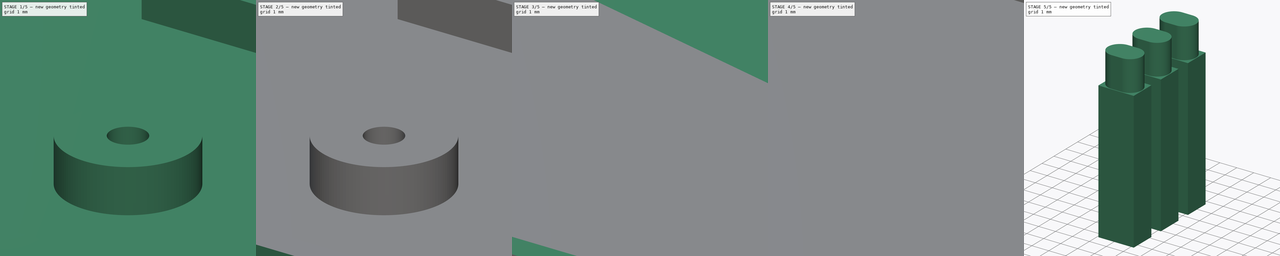
[diagram: build sequence overview — one tinted view per stage of 5, left to right]
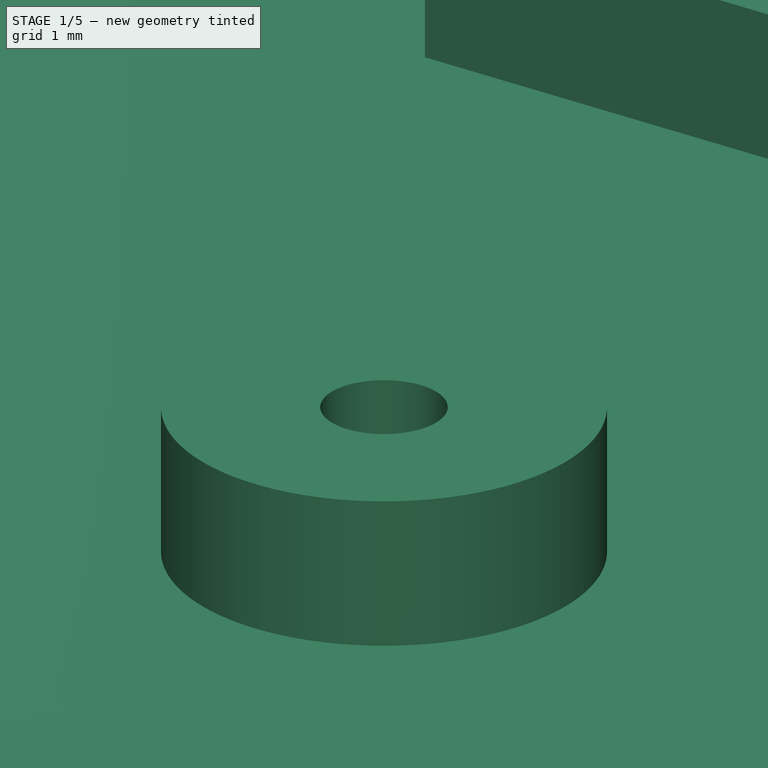
[diagram: stage 1 of 5 — iso view after this stage's code; geometry added in this stage tinted green]
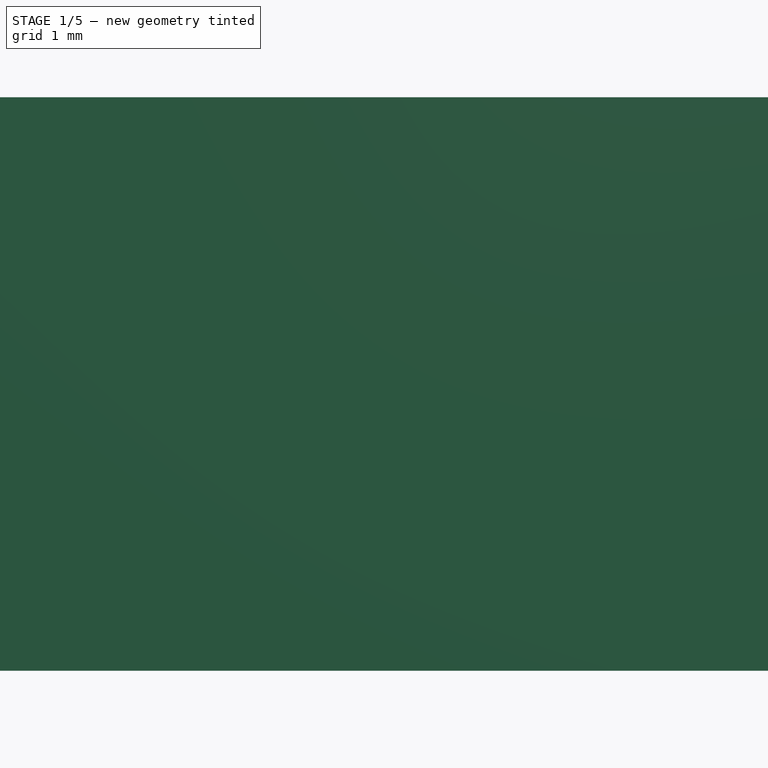
[diagram: stage 1 of 5 — front view after this stage's code; geometry added in this stage tinted green]
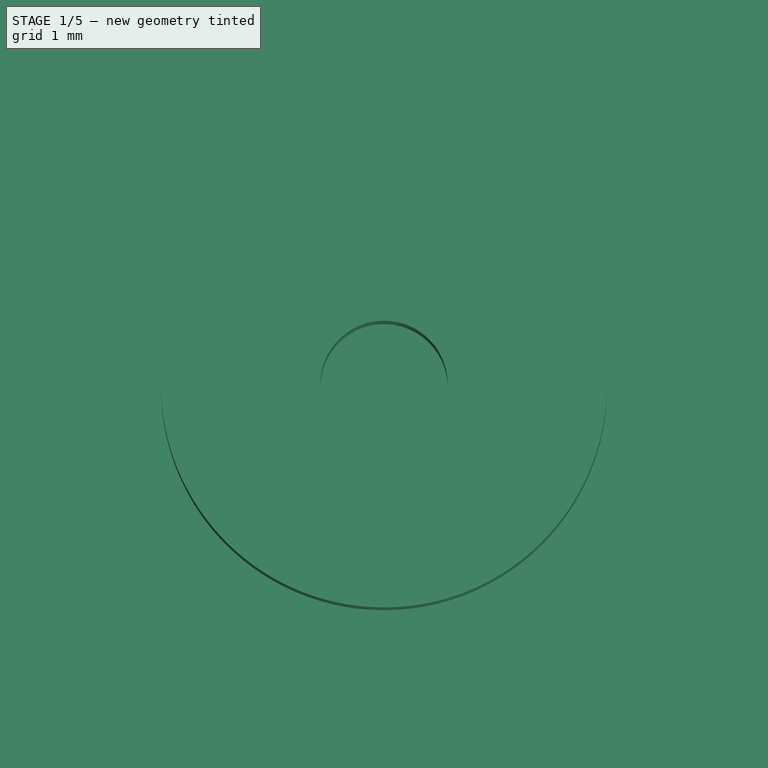
[diagram: stage 1 of 5 — top view after this stage's code; geometry added in this stage tinted green]
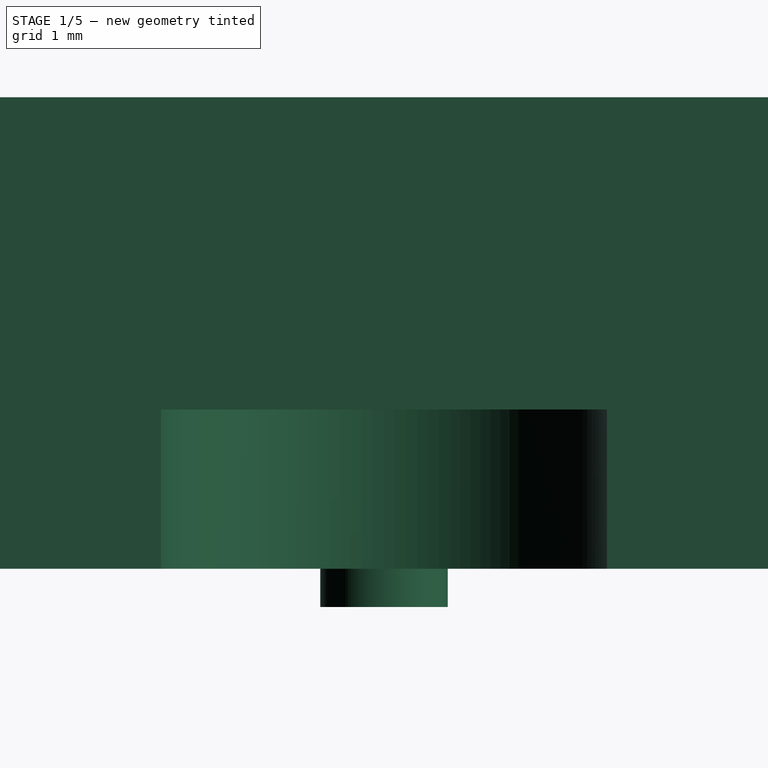
[diagram: stage 1 of 5 — right view after this stage's code; geometry added in this stage tinted green]
FCSTD DOCUMENT  (FreeCAD 1.1R20260414 (Git shallow))
Label: box
License: All rights reserved
LicenseURL: https://en.wikipedia.org/wiki/All_rights_reserved
objects: Part::Feature×80, Sketcher::SketchObject×28, PartDesign::Pocket×14, PartDesign::Pad×11, App::Point×4, PartDesign::Hole×3, PartDesign::Chamfer×3, PartDesign::Body×3, PartDesign::SubShapeBinder×2, App::Part×1, Spreadsheet::Sheet×1
note: 234 computed .brp shape members not serialized (recipe doc carries the construction recipe); baked Part::Feature solids carry a one-line shape summary decoded from their .brp

FEATURE [Part::Feature] Part__Feature  label="D_SOD-323"
  Placement = pos=(40.64,-24.765,1.56) rot=(0,0,1;1.5708rad)
  shape: bbox 1.25 x 2.5 x 1.1 mm, 67 faces (baked)
FEATURE [Part::Feature] Part__Feature001  label="R_0805_2012Metric"
  Placement = pos=(34.544,-23.622,1.56) rot=(0,0,1;1.5708rad)
  shape: bbox 1.2 x 2 x 0.45 mm, 26 faces (baked)
FEATURE [Part::Feature] Part__Feature002  label="R_1206_3216Metric"
  Placement = pos=(73.533,-6.731,1.56) rot=(0,0,-1;1.5708rad)
  shape: bbox 1.6 x 3.2 x 0.55 mm, 26 faces (baked)
FEATURE [Part::Feature] Part__Feature003  label="C_0805_2012Metric"
  Placement = pos=(4.064,-29.337,1.56) rot=(0,0,-1;1.5708rad)
  shape: bbox 1.25 x 2 x 1.25 mm, 28 faces (baked)
FEATURE [Part::Feature] Part__Feature004  label="R_0805_2012Metric001"
  Placement = pos=(17.145,-32.766,1.56) rot=(0,0,-1;1.5708rad)
  shape: bbox 1.2 x 2 x 0.45 mm, 26 faces (baked)
FEATURE [Part::Feature] Part__Feature005  label="D_SOD-324"
  Placement = pos=(27.432,-10.16,1.56) rot=(0,0,1;3.14159rad)
  shape: bbox 2.5 x 1.25 x 1.1 mm, 67 faces (baked)
FEATURE [Part::Feature] Part__Feature006  label="DIP-8_W7.62mm_Socket"
  Placement = pos=(6.731,-35.931,1.56) rot=(0,0,1;1.5708rad)
  shape: bbox 10.16 x 10.16 x 7.787 mm, 128 faces (baked)
FEATURE [Part::Feature] Part__Feature007  label="SW_PUSH_6mm"
  Placement = pos=(35.342,-34.873,1.56) rot=(0,0,1;1.5708rad)
  shape: bbox 6 x 7.174 x 7.8 mm, 105 faces (baked)
FEATURE [Part::Feature] Part__Feature008  label="R_0805_2012Metric002"
  Placement = pos=(27.178,-3.683,1.56) rot=(0,0,-1;1.5708rad)
  shape: bbox 1.2 x 2 x 0.45 mm, 26 faces (baked)
FEATURE [Part::Feature] Part__Feature009  label="R_0805_2012Metric003"
  Placement = pos=(29.718,-3.683,1.56) rot=(0,0,-1;1.5708rad)
  shape: bbox 1.2 x 2 x 0.45 mm, 26 faces (baked)
FEATURE [Part::Feature] Part__Feature010  label="R_0805_2012Metric004"
  Placement = pos=(66.929,-26.797,1.56) rot=(0,0,1;0rad)
  shape: bbox 2 x 1.2 x 0.45 mm, 26 faces (baked)
FEATURE [Part::Feature] Part__Feature011  label="C_0805_2012Metric001"
  Placement = pos=(25.146,-30.48,1.56) rot=(0,0,1;0rad)
  shape: bbox 2 x 1.25 x 1.25 mm, 28 faces (baked)
FEATURE [Part::Feature] Part__Feature012  label="SW_PUSH_6mm001"
  Placement = pos=(43.232,-25.309,1.56) rot=(0,0,1;0rad)
  shape: bbox 7.174 x 6 x 7.8 mm, 105 faces (baked)
FEATURE [Part::Feature] Part__Feature013  label="BarrelJack_GCT_DCJ200-10-A_Horizontal"
  Placement = pos=(14.097,-19.685,1.56) rot=(0,0,-1;1.5708rad)
  shape: bbox 14.3 x 9.55 x 14.59 mm, 108 faces (baked)
FEATURE [Part::Feature] Part__Feature014  label="R_0805_2012Metric005"
  Placement = pos=(49.53,-10.922,1.56) rot=(0,0,1;3.14159rad)
  shape: bbox 2 x 1.2 x 0.45 mm, 26 faces (baked)
FEATURE [Part::Feature] Part__Feature015  label="D_SOD-325"
  Placement = pos=(22.86,-35.56,1.56) rot=(0,0,-1;1.5708rad)
  shape: bbox 1.25 x 2.5 x 1.1 mm, 67 faces (baked)
FEATURE [Part::Feature] Part__Feature016  label="SW_PUSH_6mm002"
  Placement = pos=(31.952,-37.683,1.56) rot=(0,0,1;3.14159rad)
  shape: bbox 7.174 x 6 x 7.8 mm, 105 faces (baked)
FEATURE [Part::Feature] Part__Feature017  label="C_0805_2012Metric002"
  Placement = pos=(55.753,-12.954,1.56) rot=(0,0,1;3.14159rad)
  shape: bbox 2 x 1.25 x 1.25 mm, 28 faces (baked)
FEATURE [Part::Feature] Part__Feature018  label="LED_0805_2012Metric"
  Placement = pos=(53.34,-10.922,1.56) rot=(0,0,1;0rad)
  shape: bbox 2 x 1.25 x 1.1 mm, 50 faces (baked)
FEATURE [Part::Feature] Part__Feature019  label="C_0805_2012Metric003"
  Placement = pos=(4.572,-7.874,1.56) rot=(0,0,-1;1.5708rad)
  shape: bbox 1.25 x 2 x 1.25 mm, 28 faces (baked)
FEATURE [Part::Feature] Part__Feature020  label="R_0805_2012Metric006"
  Placement = pos=(36.576,-23.622,1.56) rot=(0,0,1;1.5708rad)
  shape: bbox 1.2 x 2 x 0.45 mm, 26 faces (baked)
FEATURE [Part::Feature] Part__Feature021  label="C_0805_2012Metric004"
  Placement = pos=(40.005,-15.875,1.56) rot=(0,0,1;0rad)
  shape: bbox 2 x 1.25 x 1.25 mm, 28 faces (baked)
FEATURE [Part::Feature] Part__Feature022  label="R_1206_3216Metric001"
  Placement = pos=(70.739,-6.731,1.56) rot=(0,0,1;1.5708rad)
  shape: bbox 1.6 x 3.2 x 0.55 mm, 26 faces (baked)
FEATURE [Part::Feature] Part__Feature023  label="SOT-23"
  Placement = pos=(66.3208,-29.6672,1.56) rot=(0,0,1;3.14159rad)
  shape: bbox 2.5 x 3 x 1.2 mm, 76 faces (baked)
FEATURE [Part::Feature] Part__Feature024  label="PinSocket_1x04_P2.54mm_Vertical"
  Placement = pos=(20.193,-12.954,1.56) rot=(0,0,1;1.5708rad)
  shape: bbox 10.16 x 2.54 x 11.6 mm, 114 faces (baked)
FEATURE [Part::Feature] Part__Feature025  label="PinSocket_1x05_P2.54mm_Vertical"
  Placement = pos=(44.577,-20.193,1.56) rot=(0,0,1;1.5708rad)
  shape: bbox 12.7 x 2.54 x 11.6 mm, 140 faces (baked)
FEATURE [Part::Feature] Part__Feature026  label="R_0805_2012Metric007"
  Placement = pos=(6.731,-25.781,1.56) rot=(0,0,1;3.14159rad)
  shape: bbox 2 x 1.2 x 0.45 mm, 26 faces (baked)
FEATURE [Part::Feature] Part__Feature027  label="R_0805_2012Metric008"
  Placement = pos=(24.638,-3.683,1.56) rot=(0,0,-1;1.5708rad)
  shape: bbox 1.2 x 2 x 0.45 mm, 26 faces (baked)
FEATURE [Part::Feature] Part__Feature028  label="R_0805_2012Metric009"
  Placement = pos=(55.118,-23.495,1.56) rot=(0,0,1;3.14159rad)
  shape: bbox 2 x 1.2 x 0.45 mm, 26 faces (baked)
FEATURE [Part::Feature] Part__Feature029  label="R_0805_2012Metric010"
  Placement = pos=(72.263,-37.973,1.56) rot=(0,0,1;0rad)
  shape: bbox 2 x 1.2 x 0.45 mm, 26 faces (baked)
FEATURE [Part::Feature] Part__Feature030  label="SOIC-14_3.9x8.7mm_P1.27mm"
  Placement = pos=(61.4172,-7.9756,1.56) rot=(0,0,1;0rad)
  shape: bbox 6 x 8.7 x 1.75 mm, 246 faces (baked)
FEATURE [Part::Feature] Part__Feature031  label="C_0805_2012Metric005"
  Placement = pos=(76.581,-9.906,1.56) rot=(0,0,1;3.14159rad)
  shape: bbox 2 x 1.25 x 1.25 mm, 28 faces (baked)
FEATURE [Part::Feature] Part__Feature032  label="C_1206_3216Metric"
  Placement = pos=(71.12,-34.2769,1.56) rot=(0,0,-1;1.5708rad)
  shape: bbox 1.6 x 3.2 x 1.6 mm, 28 faces (baked)
FEATURE [Part::Feature] Part__Feature033  label="D_SOD-326"
  Placement = pos=(17.145,-28.829,1.56) rot=(0,0,1;1.5708rad)
  shape: bbox 1.25 x 2.5 x 1.1 mm, 67 faces (baked)
FEATURE [Part::Feature] Part__Feature034  label="D_SOD-327"
  Placement = pos=(52.197,-24.511,1.56) rot=(0,0,1;1.5708rad)
  shape: bbox 1.25 x 2.5 x 1.1 mm, 67 faces (baked)
FEATURE [Part::Feature] Part__Feature035  label="SW_PUSH_6mm003"
  Placement = pos=(49.732,-37.683,1.56) rot=(0,0,1;3.14159rad)
  shape: bbox 7.174 x 6 x 7.8 mm, 105 faces (baked)
FEATURE [Part::Feature] Part__Feature036  label="R_0805_2012Metric011"
  Placement = pos=(21.971,-3.699,1.56) rot=(0,0,-1;1.5708rad)
  shape: bbox 1.2 x 2 x 0.45 mm, 26 faces (baked)
FEATURE [Part::Feature] Part__Feature037  label="PinHeader_1x06_P2.54mm_Vertical"
  Placement = pos=(17.653,-7.366,1.56) rot=(0,0,1;1.5708rad)
  shape: bbox 15.24 x 2.54 x 11.54 mm, 148 faces (baked)
FEATURE [Part::Feature] Part__Feature038  label="SW_PUSH_6mm004"
  Placement = pos=(67.512,-37.683,1.56) rot=(0,0,1;3.14159rad)
  shape: bbox 7.174 x 6 x 7.8 mm, 105 faces (baked)
FEATURE [Part::Feature] Part__Feature039  label="C_1206_3216Metric001"
  Placement = pos=(66.548,-9.144,1.56) rot=(0,0,-1;1.5708rad)
  shape: bbox 1.6 x 3.2 x 1.6 mm, 28 faces (baked)
FEATURE [Part::Feature] Part__Feature040  label="SOIC-16_3.9x9.9mm_P1.27mm"
  Placement = pos=(28.194,-25.654,1.56) rot=(0,0,1;1.5708rad)
  shape: bbox 9.9 x 6 x 1.75 mm, 276 faces (baked)
FEATURE [Part::Feature] Part__Feature041  label="TerminalBlock_Phoenix_MKDS-1,5-3_1x03_P5.00mm_Horizontal"
  Placement = pos=(74.803,-24.685,1.56) rot=(0,0,1;1.5708rad)
  shape: bbox 9.8 x 15.74 x 17.3 mm, 125 faces (baked)
FEATURE [Part::Feature] Part__Feature042  label="C_1206_3216Metric002"
  Placement = pos=(10.287,-12.573,1.56) rot=(0,0,1;3.14159rad)
  shape: bbox 3.2 x 1.6 x 1.6 mm, 28 faces (baked)
FEATURE [Part::Feature] Part__Feature043  label="SOT-024"
  Placement = pos=(76.708,-6.223,1.56) rot=(0,0,1;1.5708rad)
  shape: bbox 3 x 2.5 x 1.2 mm, 76 faces (baked)
FEATURE [Part::Feature] Part__Feature044  label="SW_PUSH_6mm005"
  Placement = pos=(57.622,-28.321,1.56) rot=(0,0,-1;1.5708rad)
  shape: bbox 6 x 7.174 x 7.8 mm, 105 faces (baked)
FEATURE [Part::Feature] Part__Feature045  label="C_0805_2012Metric006"
  Placement = pos=(73.406,-34.798,1.56) rot=(0,0,-1;1.5708rad)
  shape: bbox 1.25 x 2 x 1.25 mm, 28 faces (baked)
FEATURE [Part::Feature] Part__Feature046  label="R_0805_2012Metric012"
  Placement = pos=(49.53,-8.636,1.56) rot=(0,0,1;3.14159rad)
  shape: bbox 2 x 1.2 x 0.45 mm, 26 faces (baked)
FEATURE [Part::Feature] Part__Feature047  label="D_SOD-328"
  Placement = pos=(39.497,-37.338,1.56) rot=(0,0,1;0rad)
  shape: bbox 2.5 x 1.25 x 1.1 mm, 67 faces (baked)
FEATURE [Part::Feature] Part__Feature048  label="R_0805_2012Metric013"
  Placement = pos=(50.292,-16.51,1.56) rot=(0,0,1;1.5708rad)
  shape: bbox 1.2 x 2 x 0.45 mm, 26 faces (baked)
FEATURE [Part::Feature] Part__Feature049  label="D_SOD-329"
  Placement = pos=(45.085,-17.399,1.56) rot=(0,0,1;3.14159rad)
  shape: bbox 2.5 x 1.25 x 1.1 mm, 67 faces (baked)
FEATURE [Part::Feature] Part__Feature050  label="R_0805_2012Metric014"
  Placement = pos=(73.406,-30.861,1.56) rot=(0,0,1;1.5708rad)
  shape: bbox 1.2 x 2 x 0.45 mm, 26 faces (baked)
FEATURE [Part::Feature] Part__Feature051  label="R_0805_2012Metric015"
  Placement = pos=(57.531,-37.338,1.56) rot=(0,0,1;0rad)
  shape: bbox 2 x 1.2 x 0.45 mm, 26 faces (baked)
FEATURE [Part::Feature] Part__Feature052  label="C_1206_3216Metric003"
  Placement = pos=(5.1685,-12.573,1.56) rot=(0,0,1;0rad)
  shape: bbox 3.2 x 1.6 x 1.6 mm, 28 faces (baked)
FEATURE [Part::Feature] Part__Feature053  label="Buzzer_12x9.5RM7.6"
  Placement = pos=(62.738,-16.139,1.56) rot=(0,0,-1;1.5708rad)
  shape: bbox 12.99 x 12.99 x 12.53 mm, 13 faces (baked)
FEATURE [Part::Feature] Part__Feature054  label="R_0805_2012Metric016"
  Placement = pos=(49.53,-6.35,1.56) rot=(0,0,1;3.14159rad)
  shape: bbox 2 x 1.2 x 0.45 mm, 26 faces (baked)
FEATURE [Part::Feature] Part__Feature055  label="R_0805_2012Metric017"
  Placement = pos=(48.26,-16.51,1.56) rot=(0,0,1;1.5708rad)
  shape: bbox 1.2 x 2 x 0.45 mm, 26 faces (baked)
FEATURE [Part::Feature] Part__Feature056  label="D_SOD-330"
  Placement = pos=(23.114,-10.16,1.56) rot=(0,0,1;3.14159rad)
  shape: bbox 2.5 x 1.25 x 1.1 mm, 67 faces (baked)
FEATURE [Part::Feature] Part__Feature057  label="R_0805_2012Metric018"
  Placement = pos=(35.433,-37.338,1.56) rot=(0,0,1;3.14159rad)
  shape: bbox 2 x 1.2 x 0.45 mm, 26 faces (baked)
FEATURE [Part::Feature] Part__Feature058  label="R_0805_2012Metric019"
  Placement = pos=(55.118,-25.654,1.56) rot=(0,0,1;0rad)
  shape: bbox 2 x 1.2 x 0.45 mm, 26 faces (baked)
FEATURE [Part::Feature] Part__Feature059  label="PinSocket_1x03_P2.54mm_Vertical"
  Placement = pos=(76.683,-35.926,1.56) rot=(0,0,1;3.14159rad)
  shape: bbox 2.54 x 7.62 x 11.6 mm, 88 faces (baked)
FEATURE [Part::Feature] Part__Feature060  label="R_0805_2012Metric020"
  Placement = pos=(20.828,-35.56,1.56) rot=(0,0,-1;1.5708rad)
  shape: bbox 1.2 x 2 x 0.45 mm, 26 faces (baked)
FEATURE [Part::Feature] Part__Feature061  label="LQFP-32_7x7mm_P0.8mm"
  Placement = pos=(40.005,-9.525,1.56) rot=(0,0,1;1.5708rad)
  shape: bbox 9 x 9 x 1.5 mm, 516 faces (baked)
FEATURE [Part::Feature] Part__Feature062  label="SOT-223"
  Placement = pos=(9.525,-6.858,1.56) rot=(0,0,1;1.5708rad)
  shape: bbox 6.5 x 7 x 1.7 mm, 78 faces (baked)
FEATURE [Part::Feature] Part__Feature063  label="D_SOD-331"
  Placement = pos=(15.895,-25.781,1.56) rot=(0,0,1;0rad)
  shape: bbox 2.5 x 1.25 x 1.1 mm, 67 faces (baked)
FEATURE [Part::Feature] Part__Feature064  label="D_SOD-332"
  Placement = pos=(60.452,-29.083,1.56) rot=(0,0,1;1.5708rad)
  shape: bbox 1.25 x 2.5 x 1.1 mm, 67 faces (baked)
FEATURE [Part::Feature] Part__Feature065  label="C_0805_2012Metric007"
  Placement = pos=(21.2305,-15.875,1.56) rot=(0,0,1;3.14159rad)
  shape: bbox 2 x 1.25 x 1.25 mm, 28 faces (baked)
FEATURE [Part::Feature] Part__Feature066  label="LED_0805_2012Metric001"
  Placement = pos=(53.34,-6.35,1.56) rot=(0,0,1;0rad)
  shape: bbox 2 x 1.25 x 1.1 mm, 50 faces (baked)
FEATURE [Part::Feature] Part__Feature067  label="C_0805_2012Metric008"
  Placement = pos=(14.224,-11.049,1.56) rot=(0,0,-1;1.5708rad)
  shape: bbox 1.25 x 2 x 1.25 mm, 28 faces (baked)
FEATURE [Part::Feature] Part__Feature068  label="D_SOD-333"
  Placement = pos=(53.467,-37.338,1.56) rot=(0,0,1;3.14159rad)
  shape: bbox 2.5 x 1.25 x 1.1 mm, 67 faces (baked)
FEATURE [Part::Feature] Part__Feature069  label="C_1206_3216Metric004"
  Placement = pos=(36.068,-17.272,1.56) rot=(0,0,-1;1.5708rad)
  shape: bbox 1.6 x 3.2 x 1.6 mm, 28 faces (baked)
FEATURE [Part::Feature] Part__Feature070  label="C_0805_2012Metric009"
  Placement = pos=(66.421,-4.572,1.56) rot=(0,0,1;1.5708rad)
  shape: bbox 1.25 x 2 x 1.25 mm, 28 faces (baked)
FEATURE [Part::Feature] Part__Feature071  label="D_SOD-334"
  Placement = pos=(54.737,-16.383,1.56) rot=(0,0,1;1.5708rad)
  shape: bbox 1.25 x 2.5 x 1.1 mm, 67 faces (baked)
FEATURE [Part::Feature] Part__Feature072  label="D_SOD-335"
  Placement = pos=(30.607,-11.303,1.56) rot=(0,0,-1;1.5708rad)
  shape: bbox 1.25 x 2.5 x 1.1 mm, 67 faces (baked)
FEATURE [Part::Feature] Part__Feature073  label="D_SOD-336"
  Placement = pos=(19.05,-10.16,1.56) rot=(0,0,1;3.14159rad)
  shape: bbox 2.5 x 1.25 x 1.1 mm, 67 faces (baked)
FEATURE [Part::Feature] Part__Feature074  label="R_0805_2012Metric021"
  Placement = pos=(62.4332,-29.21,1.56) rot=(0,0,-1;1.5708rad)
  shape: bbox 1.2 x 2 x 0.45 mm, 26 faces (baked)
FEATURE [Part::Feature] Part__Feature075  label="D_SOD-337"
  Placement = pos=(26.162,-16.891,1.56) rot=(0,0,-1;1.5708rad)
  shape: bbox 1.25 x 2.5 x 1.1 mm, 67 faces (baked)
FEATURE [Part::Feature] Part__Feature076  label="D_SOD-338"
  Placement = pos=(52.197,-16.383,1.56) rot=(0,0,1;1.5708rad)
  shape: bbox 1.25 x 2.5 x 1.1 mm, 67 faces (baked)
FEATURE [Part::Feature] Part__Feature077  label="LED_0805_2012Metric002"
  Placement = pos=(53.34,-8.636,1.56) rot=(0,0,1;0rad)
  shape: bbox 2 x 1.25 x 1.1 mm, 50 faces (baked)
FEATURE [Part::Feature] Part__Feature078  label="D_SOD-339"
  Placement = pos=(24.13,-16.891,1.56) rot=(0,0,-1;1.5708rad)
  shape: bbox 1.25 x 2.5 x 1.1 mm, 67 faces (baked)
FEATURE [Part::Feature] Part__Feature079  label="stm32g0_PCB"
  shape: bbox 80 x 40 x 1.475 mm, 80 faces (baked)
FEATURE [App::Part] stm32g0_1  label="stm32g0 1"
  Group = -> [Part__Feature,Part__Feature001,Part__Feature002,Part__Feature003,Part__Feature004,Part__Feature005,Part__Feature006,Part__Feature007,Part__Feature008,Part__Feature009,Part__Feature010,Part__Feature011,Part__Feature012,Part__Feature013,Part__Feature014,Part__Feature015,Part__Feature016,Part__Feature017,Part__Feature018,Part__Feature019,Part__Feature020,Part__Feature021,Part__Feature022,+57 more]
  Origin = -> Origin
  Placement = pos=(-40,20,4.1) rot=(0,0,1;0rad)
  expr: .Placement.Base.x = -<<Params>>.BoxWidth / 2
  expr: .Placement.Base.y = <<Params>>.BoxHeight / 2
  expr: .Placement.Base.z = <<Params>>.MainWall + <<Params>>.PcbOffset
FEATURE [Sketcher::SketchObject] Sketch
  ArcFitTolerance = 1e-06
  ExternalTypes = [0]
  FullyConstrained = true
  MakeInternals = false
  _ExternalGeoVersion = 0
  expr: .Constraints.BoxHeight = <<Params>>.BoxHeight
  expr: .Constraints.BoxWidth = <<Params>>.BoxWidth
  expr: .Constraints.Grow = <<Params>>.Grow
  expr: .Constraints.OuterRadius = <<Params>>.OuterRadius
  sketch-geometry (13):
    g0: LineSegment StartX=-47.5 StartY=22.5 StartZ=0 EndX=-47.5 EndY=-22.5 EndZ=0
    g1: LineSegment StartX=-42.5 StartY=-27.5 StartZ=0 EndX=42.5 EndY=-27.5 EndZ=0
    g2: LineSegment StartX=47.5 StartY=-22.5 StartZ=0 EndX=47.5 EndY=22.5 EndZ=0
    g3: LineSegment StartX=42.5 StartY=27.5 StartZ=0 EndX=-42.5 EndY=27.5 EndZ=0
    g4: ArcOfCircle CenterX=42.5 CenterY=22.5 CenterZ=0 NormalX=0 NormalY=0 NormalZ=1 AngleXU=0 Radius=5 StartAngle=3e-16 EndAngle=1.5708
    g5: ArcOfCircle CenterX=42.5 CenterY=-22.5 CenterZ=0 NormalX=0 NormalY=0 NormalZ=1 AngleXU=0 Radius=5 StartAngle=4.71239 EndAngle=6.28319
    g6: ArcOfCircle CenterX=-42.5 CenterY=-22.5 CenterZ=0 NormalX=0 NormalY=0 NormalZ=1 AngleXU=0 Radius=5 StartAngle=3.14159 EndAngle=4.71239
    g7: ArcOfCircle CenterX=-42.5 CenterY=22.5 CenterZ=0 NormalX=0 NormalY=0 NormalZ=1 AngleXU=0 Radius=5 StartAngle=1.5708 EndAngle=3.14159
    g8: LineSegment [constr] StartX=-40 StartY=20 StartZ=0 EndX=-40 EndY=-20 EndZ=0
    g9: LineSegment [constr] StartX=-40 StartY=-20 StartZ=0 EndX=40 EndY=-20 EndZ=0
    g10: LineSegment [constr] StartX=40 StartY=-20 StartZ=0 EndX=40 EndY=20 EndZ=0
    g11: LineSegment [constr] StartX=40 StartY=20 StartZ=0 EndX=-40 EndY=20 EndZ=0
    g12: LineSegment [constr] StartX=40 StartY=-20 StartZ=0 EndX=42.5 EndY=-22.5 EndZ=0
  constraints (32):
    c: Vertical(g0)
    c: Vertical(g2)
    c: Horizontal(g1)
    c: Horizontal(g3)
    c: Tangent(g2,g4) = -1.5708
    c: Tangent(g3,g4) = -1.5708
    c: Tangent(g1,g5) = -1.5708
    c: Tangent(g2,g5) = -1.5708
    c: Tangent(g0,g6) = -1.5708
    c: Tangent(g1,g6) = -1.5708
    c: Tangent(g0,g7) = -1.5708
    c: Tangent(g3,g7) = -1.5708
    c: Radius(g7) = 5  'OuterRadius'
    c: Equal(g7,g4)
    c: Equal(g7,g6)
    c: Equal(g7,g5)
    c: Symmetric(g7,g5,g-1)
    c: Coincident(g8,g9)
    c: Coincident(g9,g10)
    c: Coincident(g10,g11)
    c: Coincident(g11,g8)
    c: Vertical(g8)
    c: Vertical(g10)
    c: Horizontal(g9)
    c: Horizontal(g11)
    c: Symmetric(g8,g9,g-1)
    c: DistanceX(g8,g10) = 80  'BoxWidth'
    c: DistanceY(g8,g8) = 40  'BoxHeight'
    c: DistanceY(g8,g3) = 7.5  'Grow'
    c: Coincident(g12,g9)
    c: Coincident(g12,g5)
    c: Angle(g9,g12) = 2.35619
FEATURE [Spreadsheet::Sheet] Spreadsheet  label="Params"
  cells = A1='Box width; B1(BoxWidth)=80; D1='Spacing; E1(Spacing)=0.4; G1='PCB offset; H1(PcbOffset)=2.5; J1='PCB lock gap; K1(PcbLockGap)=0.5; A2='Box height; B2(BoxHeight)=40; D2='Wall; E2(Wall)=1.6; G2='PCB thickness; H2(PcbThickness)=2.1; J2='PCB lock width; K2(PcbLockWidth)=10; A3='Corner radius; B3(CornerRadius)=3; D3='Main wall; E3(MainWall)=1.6; G3='PCB hook length; H3(PcbHookLength)=2; J3='PCB lock height; K3(PcbLockHeight)=20; A4='Outer radius; B4(OuterRadius)=5; D4='Wall radius; E4(WallRadius)=2; A5='Grow; B5(Grow)=7.5; D5='Small wall radius; E5(SmallWallRadius)=1; A6='Bottom height; B6(BottomHeight)=9; D6='Cover hole space; E6(CoverHoleSpace)=10; A7='Top height; B7(TopHeight)=8; D7='Cover mating diameter; E7(CoverMatingDiameter)=6; D8='Cover mating length; E8(CoverMatingLength)=3; D9='Top cover hole depth; E9(TopCoverHoleDepth)=13; D10='Cover mating spacing; E10(CoverMatingSpacing)=0.3; D11='Magnet diameter; E11(MagnetDiameter)=4; D12='Magnet height; E12(MagnetHeight)=3; D13='Magnet overlap; E13(MagnetOverlap)=1.5; D14='Magnet spacing; E14(MagnetSpacing)=0.18; D15='Inner wall; E15(InnerWall)=1
FEATURE [PartDesign::Pad] Pad  label="Outline"
  Direction = (0,0,1)
  Length = 9
  Length2 = 10
  Profile = -> Sketch
  ReferenceAxis = -> Sketch [N_Axis]
  Refine = true
  SideType = 0
  Suppressed = false
  Type = 0
  Type2 = 0
  expr: Length = <<Params>>.BottomHeight
FEATURE [Sketcher::SketchObject] Sketch017  label="TopCoverMatingFootprint"
  ArcFitTolerance = 1e-06
  AttachmentSupport = -> [Pocket007]
  ExternalGeometry = -> [Binder]
  ExternalTypes = [0]
  FullyConstrained = true
  MakeInternals = false
  MapMode = 5
  Placement = pos=(0,0,8) rot=(0,0,1;0rad)
  _ExternalGeoVersion = 0
  expr: .Constraints.CoverMatingDiameter = <<Params>>.CoverMatingDiameter
  sketch-geometry (4):
    g0: Circle CenterX=-42.5 CenterY=22.5 CenterZ=0 NormalX=0 NormalY=0 NormalZ=1 AngleXU=0 Radius=3
    g1: Circle CenterX=42.5 CenterY=22.5 CenterZ=0 NormalX=0 NormalY=0 NormalZ=1 AngleXU=0 Radius=3
    g2: Circle CenterX=-42.5 CenterY=-22.5 CenterZ=0 NormalX=0 NormalY=0 NormalZ=1 AngleXU=0 Radius=3
    g3: Circle CenterX=42.5 CenterY=-22.5 CenterZ=0 NormalX=0 NormalY=0 NormalZ=1 AngleXU=0 Radius=3
  constraints (8):
    c: Equal(g0,g2)
    c: Equal(g2,g1)
    c: Equal(g1,g3)
    c: Coincident(g-5,g0)
    c: Coincident(g2,g-3)
    c: Coincident(g1,g-6)
    c: Coincident(g3,g-4)
    c: Diameter(g0) = 6  'CoverMatingDiameter'
FEATURE [Sketcher::SketchObject] Sketch019  label="CoverMatingFootprint"
  ArcFitTolerance = 1e-06
  AttachmentSupport = -> [Pad]
  ExternalGeometry = -> [Pad]
  ExternalTypes = [0]
  FullyConstrained = true
  MakeInternals = false
  MapMode = 5
  Placement = pos=(0,0,9) rot=(0,0,1;0rad)
  _ExternalGeoVersion = 0
  expr: .Constraints.CoverHoleSpace = <<Params>>.CoverHoleSpace
  expr: .Constraints.CoverMatingDiameter = <<Params>>.CoverMatingDiameter
  expr: .Constraints.CoverMatingSpacing = <<Params>>.CoverMatingSpacing
  sketch-geometry (11):
    g0: Circle CenterX=-42.5 CenterY=22.5 CenterZ=0 NormalX=0 NormalY=0 NormalZ=1 AngleXU=0 Radius=3.3
    g1: Circle [constr] CenterX=-42.5 CenterY=22.5 CenterZ=0 NormalX=0 NormalY=0 NormalZ=1 AngleXU=0 Radius=3
    g2: Circle CenterX=42.5 CenterY=22.5 CenterZ=0 NormalX=0 NormalY=0 NormalZ=1 AngleXU=0 Radius=3.3
    g3: Circle CenterX=-42.5 CenterY=-22.5 CenterZ=0 NormalX=0 NormalY=0 NormalZ=1 AngleXU=0 Radius=3.3
    g4: Circle CenterX=42.5 CenterY=-22.5 CenterZ=0 NormalX=0 NormalY=0 NormalZ=1 AngleXU=0 Radius=3.3
    g5: LineSegment [constr] StartX=-42.5 StartY=22.5 StartZ=0 EndX=-39.5 EndY=22.5 EndZ=0
    g6: GeomPoint [constr] X=-39.2 Y=22.5 Z=0
    g7: LineSegment [constr] StartX=-47.5 StartY=27.5 StartZ=0 EndX=-47.5 EndY=17.5 EndZ=0
    g8: LineSegment [constr] StartX=-47.5 StartY=17.5 StartZ=0 EndX=-37.5 EndY=17.5 EndZ=0
    g9: LineSegment [constr] StartX=-37.5 StartY=17.5 StartZ=0 EndX=-37.5 EndY=27.5 EndZ=0
    g10: LineSegment [constr] StartX=-37.5 StartY=27.5 StartZ=0 EndX=-47.5 EndY=27.5 EndZ=0
  constraints (27):
    c: Coincident(g1,g0)
    c: Diameter(g1) = 6  'CoverMatingDiameter'
    c: Symmetric(g0,g3,g-1)
    c: Symmetric(g0,g2,g-2)
    c: Symmetric(g3,g4,g-2)
    c: Equal(g0,g3)
    c: Equal(g3,g4)
    c: Equal(g4,g2)
    c: Coincident(g5,g0)
    c: PointOnObject(g5,g1)
    c: Horizontal(g5)
    c: PointOnObject(g6,g5)
    c: PointOnObject(g6,g0)
    c: DistanceX(g5,g6) = 0.3  'CoverMatingSpacing'
    c: Coincident(g7,g8)
    c: Coincident(g8,g9)
    c: Coincident(g9,g10)
    c: Coincident(g10,g7)
    c: Vertical(g7)
    c: Vertical(g9)
    c: Horizontal(g8)
    c: Horizontal(g10)
    c: Equal(g10,g7)
    c: PointOnObject(g9,g-3)
    c: PointOnObject(g7,g-4)
    c: DistanceY(g8,g9) = 10  'CoverHoleSpace'
    c: Symmetric(g7,g8,g0)
FEATURE [PartDesign::Pocket] Pocket011  label="CoverMating"
  BaseFeature = -> Pad
  Direction = (0,0,-1)
  Length = 1.8
  Length2 = 5
  Profile = -> Sketch019
  ReferenceAxis = -> Sketch019 [N_Axis]
  Refine = true
  SideType = 0
  Suppressed = false
  Type = 0
  Type2 = 0
  expr: Length = <<Params>>.MagnetOverlap + <<Params>>.CoverMatingSpacing
FEATURE [Sketcher::SketchObject] Sketch020  label="MagnetHoleFootprint"
  ArcFitTolerance = 1e-06
  AttachmentSupport = -> [Pocket011]
  ExternalGeometry = -> [Pocket011]
  ExternalTypes = [0]
  FullyConstrained = true
  MakeInternals = false
  MapMode = 5
  Placement = pos=(0,0,7.2) rot=(0,0,1;0rad)
  _ExternalGeoVersion = 0
  sketch-geometry (4):
    g0: Circle CenterX=-42.5 CenterY=22.5 CenterZ=0 NormalX=0 NormalY=0 NormalZ=1 AngleXU=0 Radius=0.5
    g1: Circle CenterX=42.5 CenterY=22.5 CenterZ=0 NormalX=0 NormalY=0 NormalZ=1 AngleXU=0 Radius=0.5
    g2: Circle CenterX=-42.5 CenterY=-22.5 CenterZ=0 NormalX=0 NormalY=0 NormalZ=1 AngleXU=0 Radius=0.5
    g3: Circle CenterX=42.5 CenterY=-22.5 CenterZ=0 NormalX=0 NormalY=0 NormalZ=1 AngleXU=0 Radius=0.5
  constraints (8):
    c: Coincident(g0,g-3)
    c: Coincident(g1,g-5)
    c: Coincident(g2,g-4)
    c: Coincident(g3,g-6)
    c: Equal(g0,g1)
    c: Equal(g1,g2)
    c: Equal(g2,g3)
    c: Diameter(g0) = 1
FEATURE [PartDesign::Hole] Hole  label="MagnetHole"
  BaseFeature = -> Pocket011
  BaseProfileType = 6
  CustomThreadClearance = 0
  Depth = 3.3
  DepthType = 0
  Diameter = 4.18
  DrillForDepth = false
  DrillPoint = 0
  DrillPointAngle = 118
  HoleCutCountersinkAngle = 90
  HoleCutCustomValues = false
  HoleCutDepth = 0
  HoleCutDiameter = 6.1
  HoleCutType = 0
  ModelThread = false
  Profile = -> Sketch020
  Refine = true
  Suppressed = false
  Tapered = false
  TaperedAngle = 90
  ThreadClass = 0
  ThreadDepth = 3.3
  ThreadDepthType = 0
  ThreadDiameter = 4.18
  ThreadDirection = 0
  ThreadFit = 0
  ThreadSize = 0
  ThreadType = 0
  Threaded = false
  UseCustomThreadClearance = false
  expr: Depth = <<Params>>.MagnetHeight + <<Params>>.CoverMatingSpacing
  expr: Diameter = <<Params>>.MagnetDiameter + <<Params>>.MagnetSpacing
FEATURE [PartDesign::Pocket] Pocket
  BaseFeature = -> Hole
  Direction = (0,0,-1)
  Length = 7.4
  Length2 = 5
  Profile = -> Sketch001
  ReferenceAxis = -> Sketch001 [N_Axis]
  Refine = true
  SideType = 0
  Suppressed = false
  Type = 0
  Type2 = 0
  expr: Length = <<Params>>.BottomHeight - <<Params>>.MainWall
FEATURE [Sketcher::SketchObject] Sketch002  label="PcbSupportFootprint"
  ArcFitTolerance = 1e-06
  AttachmentSupport = -> [Pocket]
  ExternalGeometry = -> [Pocket]
  ExternalTypes = [0]
  FullyConstrained = true
  MakeInternals = false
  MapMode = 5
  Placement = pos=(0,0,1.6) rot=(0,0,1;0rad)
  _ExternalGeoVersion = 0
  expr: Constraints[42] = <<Params>>.Spacing + 51
  expr: Constraints[43] = <<Params>>.Spacing + 3
  sketch-geometry (17):
    g0: LineSegment StartX=-10 StartY=20.4 StartZ=0 EndX=-10 EndY=15.4 EndZ=0
    g1: LineSegment StartX=-10 StartY=15.4 StartZ=0 EndX=10 EndY=15.4 EndZ=0
    g2: LineSegment StartX=10 StartY=15.4 StartZ=0 EndX=10 EndY=20.4 EndZ=0
    g3: LineSegment StartX=10 StartY=20.4 StartZ=0 EndX=-10 EndY=20.4 EndZ=0
    g4: LineSegment StartX=-40.4 StartY=5.25 StartZ=0 EndX=-40.4 EndY=-5.25 EndZ=0
    g5: LineSegment StartX=-40.4 StartY=-5.25 StartZ=0 EndX=-35.4 EndY=-5.25 EndZ=0
    g6: LineSegment StartX=-35.4 StartY=-5.25 StartZ=0 EndX=-35.4 EndY=5.25 EndZ=0
    g7: LineSegment StartX=-35.4 StartY=5.25 StartZ=0 EndX=-40.4 EndY=5.25 EndZ=0
    g8: LineSegment StartX=35.4 StartY=17 StartZ=0 EndX=35.4 EndY=9 EndZ=0
    g9: LineSegment StartX=35.4 StartY=9 StartZ=0 EndX=40.4 EndY=9 EndZ=0
    g10: LineSegment StartX=40.4 StartY=9 StartZ=0 EndX=40.4 EndY=17 EndZ=0
    g11: LineSegment StartX=40.4 StartY=17 StartZ=0 EndX=35.4 EndY=17 EndZ=0
    g12: LineSegment StartX=11 StartY=-15.4 StartZ=0 EndX=11 EndY=-20.4 EndZ=0
    g13: LineSegment StartX=11 StartY=-20.4 StartZ=0 EndX=19.5 EndY=-20.4 EndZ=0
    g14: LineSegment StartX=19.5 StartY=-20.4 StartZ=0 EndX=19.5 EndY=-15.4 EndZ=0
    g15: LineSegment StartX=19.5 StartY=-15.4 StartZ=0 EndX=11 EndY=-15.4 EndZ=0
    g16: Circle CenterX=0 CenterY=0 CenterZ=0 NormalX=0 NormalY=0 NormalZ=1 AngleXU=0 Radius=3.5
  constraints (48):
    c: Coincident(g0,g1)
    c: Coincident(g1,g2)
    c: Coincident(g2,g3)
    c: Coincident(g3,g0)
    c: Vertical(g0)
    c: Vertical(g2)
    c: Horizontal(g3)
    c: DistanceX(g0,g2) = 20
    c: DistanceY(g1,g2) = 5
    c: Coincident(g4,g5)
    c: Coincident(g5,g6)
    c: Coincident(g6,g7)
    c: Coincident(g7,g4)
    c: Vertical(g4)
    c: Horizontal(g5)
    c: Horizontal(g7)
    c: DistanceY(g5,g6) = 10.5
    c: DistanceX(g4,g5) = 5
    c: PointOnObject(g0,g-6)
    c: PointOnObject(g4,g-5)
    c: Coincident(g8,g9)
    c: Coincident(g9,g10)
    c: Coincident(g10,g11)
    c: Coincident(g11,g8)
    c: Vertical(g8)
    c: Vertical(g10)
    c: Horizontal(g9)
    c: Horizontal(g11)
    c: PointOnObject(g10,g-3)
    c: DistanceX(g8,g9) = 5
    c: DistanceY(g8,g8) = 8
    c: Coincident(g12,g13)
    c: Coincident(g13,g14)
    c: Coincident(g14,g15)
    c: Coincident(g15,g12)
    c: Vertical(g12)
    c: Vertical(g14)
    c: Horizontal(g13)
    c: Horizontal(g15)
    c: PointOnObject(g13,g-4)
    c: DistanceY(g13,g14) = 5
    c: DistanceX(g12,g14) = 8.5
    c: DistanceX(g-5,g12) = 51.4
    c: DistanceY(g10,g-6) = 3.4
    c: Symmetric(g0,g1,g-2)
    c: Symmetric(g6,g5,g-1)
    c: Coincident(g16,g-1)
    c: Radius(g16) = 3.5
FEATURE [PartDesign::Pad] Pad001  label="PcbSupport"
  BaseFeature = -> Pocket
  Direction = (0,0,1)
  Length = 2.5
  Length2 = 10
  Profile = -> Sketch002
  ReferenceAxis = -> Sketch002 [N_Axis]
  Refine = true
  SideType = 0
  Suppressed = false
  Type = 0
  Type2 = 0
  expr: Length = <<Params>>.PcbOffset
FEATURE [Sketcher::SketchObject] Sketch003  label="WallFootprint"
  ArcFitTolerance = 1e-06
  AttachmentSupport = -> [Pocket]
  ExternalGeometry = -> [Pocket,Sketch]
  ExternalTypes = [0]
  FullyConstrained = true
  MakeInternals = false
  MapMode = 5
  Placement = pos=(0,0,9) rot=(0,0,1;0rad)
  _ExternalGeoVersion = 0
  expr: .Constraints.CoverHoleSpace = <<Params>>.CoverHoleSpace
  expr: .Constraints.SmallWallRadius = <<Params>>.SmallWallRadius
  expr: .Constraints.Wall = <<Params>>.Wall
  expr: .Constraints.WallRadius = <<Params>>.WallRadius
  sketch-geometry (38):
    g0: LineSegment StartX=-37.5 StartY=26.5 StartZ=0 EndX=-37.5 EndY=24 EndZ=0
    g1: LineSegment StartX=-35.5 StartY=22 StartZ=0 EndX=35.5 EndY=22 EndZ=0
    g2: ArcOfCircle CenterX=-35.5 CenterY=24 CenterZ=0 NormalX=0 NormalY=0 NormalZ=1 AngleXU=0 Radius=2 StartAngle=3.14159 EndAngle=4.71239
    g3: ArcOfCircle CenterX=-38.5 CenterY=26.5 CenterZ=0 NormalX=0 NormalY=0 NormalZ=1 AngleXU=0 Radius=1 StartAngle=1.3e-15 EndAngle=1.5708
    g4: LineSegment StartX=-38.5 StartY=27.5 StartZ=0 EndX=38.5 EndY=27.5 EndZ=0
    g5: LineSegment StartX=-42 StartY=-15.5 StartZ=0 EndX=-42 EndY=15.5 EndZ=0
    g6: LineSegment StartX=-44 StartY=17.5 StartZ=0 EndX=-46.5 EndY=17.5 EndZ=0
    g7: ArcOfCircle CenterX=-46.5 CenterY=18.5 CenterZ=0 NormalX=0 NormalY=0 NormalZ=1 AngleXU=0 Radius=1 StartAngle=3.14159 EndAngle=4.71239
    g8: ArcOfCircle CenterX=-44 CenterY=15.5 CenterZ=0 NormalX=0 NormalY=0 NormalZ=1 AngleXU=0 Radius=2 StartAngle=0 EndAngle=1.5708
    g9: LineSegment StartX=-47.5 StartY=18.5 StartZ=0 EndX=-47.5 EndY=-18.5 EndZ=0
    g10: LineSegment StartX=37.5 StartY=26.5 StartZ=0 EndX=37.5 EndY=24 EndZ=0
    g11: ArcOfCircle CenterX=35.5 CenterY=24 CenterZ=0 NormalX=0 NormalY=0 NormalZ=1 AngleXU=0 Radius=2 StartAngle=4.71239 EndAngle=6.28319
    g12: ArcOfCircle CenterX=38.5 CenterY=26.5 CenterZ=0 NormalX=0 NormalY=0 NormalZ=1 AngleXU=0 Radius=1 StartAngle=1.5708 EndAngle=3.14159
    g13: LineSegment StartX=-44 StartY=-17.5 StartZ=0 EndX=-46.5 EndY=-17.5 EndZ=0
    g14: ArcOfCircle CenterX=-46.5 CenterY=-18.5 CenterZ=0 NormalX=0 NormalY=0 NormalZ=1 AngleXU=0 Radius=1 StartAngle=1.5708 EndAngle=3.14159
    g15: ArcOfCircle CenterX=-44 CenterY=-15.5 CenterZ=0 NormalX=0 NormalY=0 NormalZ=1 AngleXU=0 Radius=2 StartAngle=4.71239 EndAngle=6.28319
    g16: LineSegment StartX=-37.5 StartY=-26.5 StartZ=0 EndX=-37.5 EndY=-24 EndZ=0
    g17: LineSegment StartX=-35.5 StartY=-22 StartZ=0 EndX=35.5 EndY=-22 EndZ=0
    g18: ArcOfCircle CenterX=-35.5 CenterY=-24 CenterZ=0 NormalX=0 NormalY=0 NormalZ=1 AngleXU=0 Radius=2 StartAngle=1.5708 EndAngle=3.14159
    g19: ArcOfCircle CenterX=-38.5 CenterY=-26.5 CenterZ=0 NormalX=0 NormalY=0 NormalZ=1 AngleXU=0 Radius=1 StartAngle=4.71239 EndAngle=6.28319
    g20: LineSegment StartX=-38.5 StartY=-27.5 StartZ=0 EndX=38.5 EndY=-27.5 EndZ=0
    g21: LineSegment StartX=37.5 StartY=-26.5 StartZ=0 EndX=37.5 EndY=-24 EndZ=0
    g22: ArcOfCircle CenterX=35.5 CenterY=-24 CenterZ=0 NormalX=0 NormalY=0 NormalZ=1 AngleXU=0 Radius=2 StartAngle=3e-16 EndAngle=1.5708
    g23: ArcOfCircle CenterX=38.5 CenterY=-26.5 CenterZ=0 NormalX=0 NormalY=0 NormalZ=1 AngleXU=0 Radius=1 StartAngle=3.14159 EndAngle=4.71239
    g24: LineSegment StartX=42 StartY=-15.5 StartZ=0 EndX=42 EndY=15.5 EndZ=0
    g25: LineSegment StartX=44 StartY=17.5 StartZ=0 EndX=46.5 EndY=17.5 EndZ=0
    g26: ArcOfCircle CenterX=46.5 CenterY=18.5 CenterZ=0 NormalX=0 NormalY=0 NormalZ=1 AngleXU=0 Radius=1 StartAngle=4.71239 EndAngle=6.28319
    g27: ArcOfCircle CenterX=44 CenterY=15.5 CenterZ=0 NormalX=0 NormalY=0 NormalZ=1 AngleXU=0 Radius=2 StartAngle=1.5708 EndAngle=3.14159
    g28: LineSegment StartX=47.5 StartY=18.5 StartZ=0 EndX=47.5 EndY=-18.5 EndZ=0
    g29: LineSegment StartX=44 StartY=-17.5 StartZ=0 EndX=46.5 EndY=-17.5 EndZ=0
    g30: ArcOfCircle CenterX=46.5 CenterY=-18.5 CenterZ=0 NormalX=0 NormalY=0 NormalZ=1 AngleXU=0 Radius=1 StartAngle=6.28319 EndAngle=7.85398
    g31: ArcOfCircle CenterX=44 CenterY=-15.5 CenterZ=0 NormalX=0 NormalY=0 NormalZ=1 AngleXU=0 Radius=2 StartAngle=3.14159 EndAngle=4.71239
    g32: LineSegment [constr] StartX=-37 StartY=20.4 StartZ=0 EndX=-35.5 EndY=22 EndZ=0
    g33: LineSegment [constr] StartX=-40.4 StartY=17 StartZ=0 EndX=-42 EndY=15.5 EndZ=0
    g34: LineSegment [constr] StartX=-37.5 StartY=26.5 StartZ=0 EndX=-37.5 EndY=27.5 EndZ=0
    g35: LineSegment [constr] StartX=-46.5 StartY=17.5 StartZ=0 EndX=-47.5 EndY=17.5 EndZ=0
    g36: LineSegment [constr] StartX=-47.5 StartY=17.5 StartZ=0 EndX=-47.5 EndY=27.5 EndZ=0
    g37: LineSegment [constr] StartX=-37.5 StartY=27.5 StartZ=0 EndX=-47.5 EndY=27.5 EndZ=0
  constraints (93):
    c: Tangent(g0,g2) = -1.5708
    c: Tangent(g1,g2) = -1.5708
    c: Radius(g2) = 2  'WallRadius'
    c: DistanceX(g-3,g0) = 10  'CoverHoleSpace'
    c: Tangent(g0,g3) = 1.5708
    c: Radius(g3) = 1  'SmallWallRadius'
    c: Tangent(g4,g3) = 1.5708
    c: Tangent(g6,g7) = 1.5708
    c: Tangent(g5,g8) = -1.5708
    c: Tangent(g6,g8) = -1.5708
    c: PointOnObject(g7,g-3)
    c: Tangent(g9,g7) = -1.5708
    c: Equal(g8,g2)
    c: Equal(g3,g7)
    c: DistanceX(g5,g-5) = 1.6  'Wall'
    c: PointOnObject(g3,g-8)
    c: Tangent(g10,g11) = 1.5708
    c: Tangent(g10,g12) = -1.5708
    c: Equal(g3,g12)
    c: Equal(g11,g2)
    c: Symmetric(g3,g12,g-2)
    c: Coincident(g4,g12)
    c: Tangent(g13,g14) = -1.5708
    c: Tangent(g13,g15) = 1.5708
    c: Equal(g15,g8)
    c: Equal(g14,g7)
    c: Symmetric(g7,g14,g-1)
    c: Coincident(g9,g14)
    c: Tangent(g5,g15) = -1.5708
    c: Tangent(g1,g11) = -1.5708
    c: Tangent(g16,g18) = 1.5708
    c: Tangent(g17,g18) = 1.5708
    c: Tangent(g16,g19) = -1.5708
    c: Tangent(g20,g19) = -1.5708
    c: Tangent(g21,g22) = -1.5708
    c: Tangent(g21,g23) = 1.5708
    c: Equal(g19,g23)
    c: Equal(g22,g18)
    c: Coincident(g20,g23)
    c: Tangent(g17,g22) = 1.5708
    c: Equal(g19,g3)
    c: Equal(g18,g2)
    c: Symmetric(g18,g2,g-1)
    c: Symmetric(g19,g23,g-2)
    c: PointOnObject(g19,g-9)
    c: Tangent(g25,g26) = -1.5708
    c: Tangent(g24,g27) = 1.5708
    c: Tangent(g25,g27) = 1.5708
    c: Tangent(g28,g26) = 1.5708
    c: Tangent(g29,g30) = 1.5708
    c: Tangent(g29,g31) = -1.5708
    c: Equal(g31,g27)
    c: Equal(g30,g26)
    c: Coincident(g28,g30)
    c: Tangent(g24,g31) = 1.5708
    c: Equal(g27,g8)
    c: Equal(g26,g7)
    c: Symmetric(g27,g8,g-2)
    c: Symmetric(g26,g30,g-1)
    c: PointOnObject(g26,g-6)
    c: Equal(g10,g0)
    c: Vertical(g0)
    c: Horizontal(g1)
    c: Horizontal(g4)
    c: Equal(g21,g16)
    c: Vertical(g16)
    c: Horizontal(g17)
    c: Horizontal(g20)
    c: Equal(g13,g6)
    c: Horizontal(g6)
    c: Vertical(g5)
    c: Vertical(g9)
    c: Equal(g25,g29)
    c: Horizontal(g25)
    c: Vertical(g24)
    c: Vertical(g28)
    c: Coincident(g32,g-4)
    c: Coincident(g32,g1)
    c: Coincident(g33,g-5)
    c: Coincident(g33,g5)
    c: Equal(g33,g32)
    c: Coincident(g34,g0)
    c: PointOnObject(g34,g4)
    c: Vertical(g34)
    c: Coincident(g35,g6)
    c: PointOnObject(g35,g9)
    c: Horizontal(g35)
    c: Coincident(g36,g35)
    c: Vertical(g36)
    c: Coincident(g37,g34)
    c: Horizontal(g37)
    c: Coincident(g37,g36)
    c: Equal(g37,g36)
FEATURE [Sketcher::SketchObject] Sketch011  label="PcbMountingHoleFootprint"
  ArcFitTolerance = 1e-06
  AttachmentSupport = -> [Pad001]
  ExternalTypes = [0]
  FullyConstrained = true
  MakeInternals = false
  MapMode = 5
  Placement = pos=(0,0,4.1) rot=(0,0,1;0rad)
  _ExternalGeoVersion = 0
  sketch-geometry (1):
    g0: Circle CenterX=0 CenterY=0 CenterZ=0 NormalX=0 NormalY=0 NormalZ=1 AngleXU=0 Radius=1
  constraints (2):
    c: Coincident(g0,g-1)
    c: Diameter(g0) = 2
FEATURE [PartDesign::Hole] Hole001  label="PcbMountingHole"
  BaseFeature = -> Pad001
  BaseProfileType = 6
  CustomThreadClearance = 0
  Depth = 3.1
  DepthType = 0
  Diameter = 2
  DrillForDepth = false
  DrillPoint = 0
  DrillPointAngle = 118
  HoleCutCountersinkAngle = 90
  HoleCutCustomValues = false
  HoleCutDepth = 0
  HoleCutDiameter = 6.1
  HoleCutType = 0
  ModelThread = false
  Profile = -> Sketch011
  Refine = true
  Suppressed = false
  Tapered = false
  TaperedAngle = 90
  ThreadClass = 0
  ThreadDepth = 3.1
  ThreadDepthType = 0
  ThreadDiameter = 2
  ThreadDirection = 0
  ThreadFit = 0
  ThreadSize = 0
  ThreadType = 0
  Threaded = false
  UseCustomThreadClearance = false
  expr: Depth = <<Params>>.PcbOffset + <<Params>>.MainWall - 1
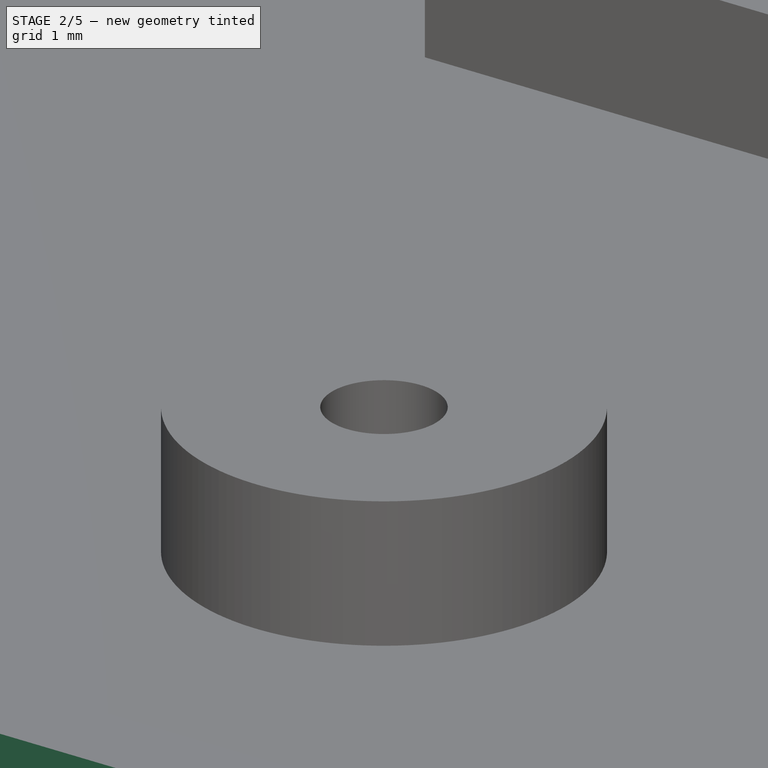
[diagram: stage 2 of 5 — iso view after this stage's code; geometry added in this stage tinted green]
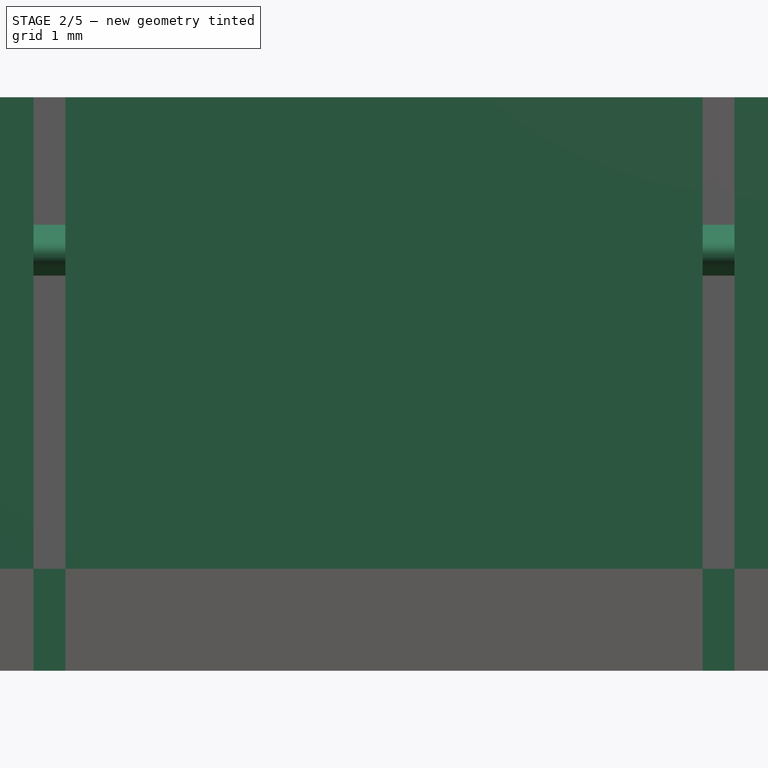
[diagram: stage 2 of 5 — front view after this stage's code; geometry added in this stage tinted green]
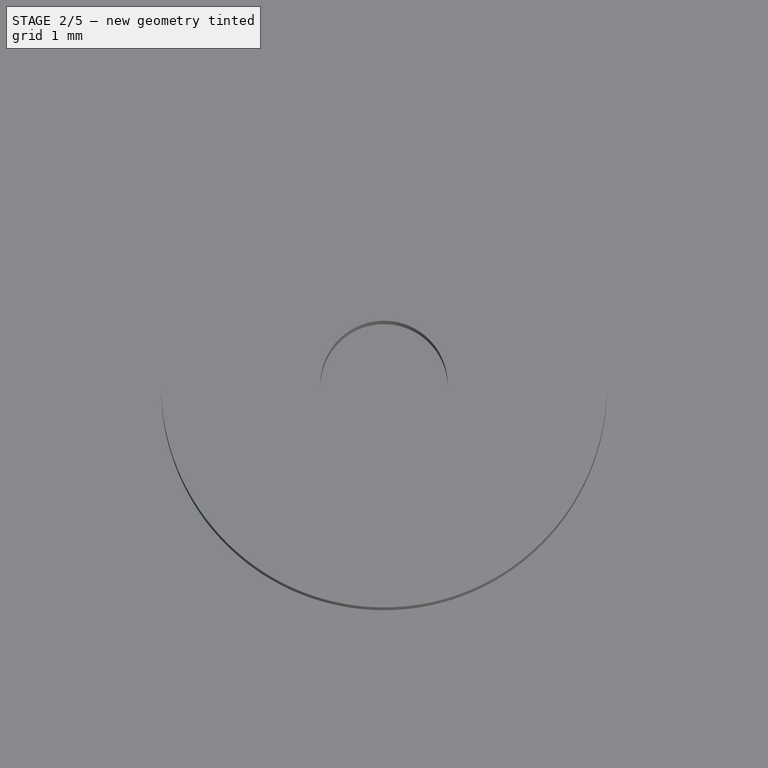
[diagram: stage 2 of 5 — top view after this stage's code; geometry added in this stage tinted green]
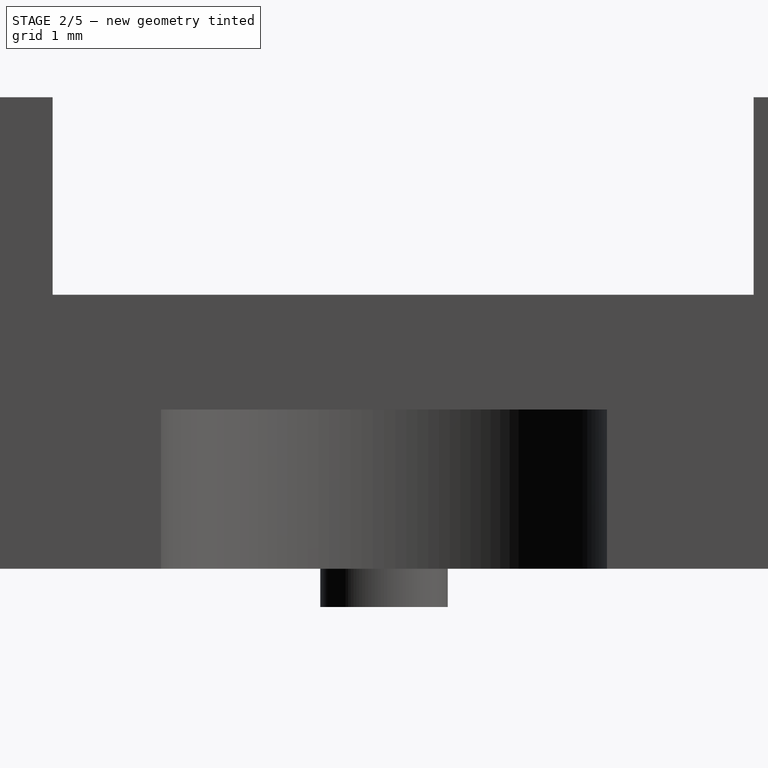
[diagram: stage 2 of 5 — right view after this stage's code; geometry added in this stage tinted green]
FEATURE [PartDesign::Pocket] Pocket001  label="Wall"
  BaseFeature = -> Hole001
  Direction = (0,0,-1)
  Length = 7.4
  Length2 = 5
  Profile = -> Sketch003
  ReferenceAxis = -> Sketch003 [N_Axis]
  Refine = true
  SideType = 0
  Suppressed = false
  Type = 0
  Type2 = 0
  expr: Length = <<Params>>.BottomHeight - <<Params>>.MainWall
FEATURE [PartDesign::Pocket] Pocket002  label="PcbLock"
  BaseFeature = -> Pocket001
  Direction = (0,0,-1)
  Length = 9
  Length2 = 5
  Profile = -> Sketch004
  ReferenceAxis = -> Sketch004 [N_Axis]
  Refine = true
  SideType = 0
  Suppressed = false
  Type = 0
  Type2 = 0
  expr: Length = <<Params>>.BottomHeight
FEATURE [Sketcher::SketchObject] Sketch005  label="PcbHookFootprint"
  ArcFitTolerance = 1e-06
  AttachmentSupport = -> [Pocket002]
  ExternalGeometry = -> [Pocket002]
  ExternalTypes = [0]
  FullyConstrained = true
  MakeInternals = false
  MapMode = 5
  Placement = pos=(10,0,0) rot=(0.57735,0.57735,0.57735;2.0944rad)
  _ExternalGeoVersion = 0
  expr: .Constraints.PcbThickness = <<Params>>.PcbThickness
  expr: .Constraints.Width = <<Params>>.PcbHookLength
  sketch-geometry (5):
    g0: LineSegment StartX=20.4 StartY=6.2 StartZ=0 EndX=19.3913 EndY=6.3513 EndZ=0
    g1: LineSegment StartX=19.3725 StartY=6.74312 StartZ=0 EndX=20.4 EndY=7 EndZ=0
    g2: LineSegment StartX=20.4 StartY=7 StartZ=0 EndX=20.4 EndY=6.2 EndZ=0
    g3: ArcOfCircle CenterX=19.421 CenterY=6.54909 CenterZ=0 NormalX=0 NormalY=0 NormalZ=1 AngleXU=0 Radius=0.2 StartAngle=1.81577 EndAngle=4.5635
    g4: GeomPoint [constr] X=18.4 Y=6.5 Z=0
  constraints (13):
    c: PointOnObject(g0,g-4)
    c: Coincident(g2,g1)
    c: Coincident(g2,g0)
    c: Vertical(g2)
    c: DistanceY(g-3,g0) = 2.1  'PcbThickness'
    c: DistanceY(g0,g4) = 0.3  'Slope'
    c: DistanceX(g4,g0) = 2  'Width'
    c: PointOnObject(g4,g0)
    c: PointOnObject(g4,g1)
    c: Tangent(g0,g3) = 1.5708
    c: Tangent(g1,g3) = 1.5708
    c: Radius(g3) = 0.2  'Radius'
    c: DistanceY(g0,g1) = 0.8  'Height'
FEATURE [PartDesign::Pad] Pad002  label="PcbHook"
  BaseFeature = -> Pocket002
  Direction = (1,0,0)
  Length = 10
  Length2 = 10
  Profile = -> Sketch005
  ReferenceAxis = -> Sketch005 [N_Axis]
  Refine = true
  SideType = 0
  Suppressed = false
  Type = 3
  Type2 = 0
  UpToFace = -> Pocket002 [Face77]
FEATURE [Sketcher::SketchObject] Sketch006  label="PcbHookOnLockFootprint"
  ArcFitTolerance = 1e-06
  AttachmentSupport = -> [Pad002]
  ExternalGeometry = -> [Pad002]
  ExternalTypes = [0,0,0,0]
  FullyConstrained = true
  MakeInternals = false
  MapMode = 5
  Placement = pos=(5,0,0) rot=(0.57735,0.57735,0.57735;2.0944rad)
  _ExternalGeoVersion = 0
  expr: .Constraints.PcbHookLength = <<Params>>.PcbHookLength
  expr: .Constraints.PcbThickness = <<Params>>.PcbThickness
  sketch-geometry (9):
    g0: LineSegment StartX=-20.4 StartY=6.2 StartZ=0 EndX=-19.3913 EndY=6.3513 EndZ=0
    g1: LineSegment StartX=-19.3725 StartY=6.74312 StartZ=0 EndX=-20.4 EndY=7 EndZ=0
    g2: LineSegment StartX=-20.4 StartY=7 StartZ=0 EndX=-20.4 EndY=6.2 EndZ=0
    g3: ArcOfCircle CenterX=-19.421 CenterY=6.54909 CenterZ=0 NormalX=0 NormalY=0 NormalZ=1 AngleXU=0 Radius=0.2 StartAngle=4.86128 EndAngle=7.609
    g4: LineSegment StartX=-20.4 StartY=1.6 StartZ=0 EndX=-18.4 EndY=1.6 EndZ=0
    g5: LineSegment StartX=-18.4 StartY=1.6 StartZ=0 EndX=-18.4 EndY=4.1 EndZ=0
    g6: LineSegment StartX=-18.4 StartY=4.1 StartZ=0 EndX=-20.4 EndY=4.1 EndZ=0
    g7: LineSegment StartX=-20.4 StartY=4.1 StartZ=0 EndX=-20.4 EndY=1.6 EndZ=0
    g8: LineSegment [constr] StartX=15.4 StartY=4.1 StartZ=0 EndX=-20.4 EndY=4.1 EndZ=0
  constraints (25):
    c: Coincident(g2,g1)
    c: Coincident(g2,g0)
    c: PointOnObject(g0,g-3)
    c: Vertical(g2)
    c: DistanceY(g-5,g0) = 2.1  'PcbThickness'
    c: Tangent(g0,g3) = -1.5708
    c: Tangent(g1,g3) = -1.5708
    c: Coincident(g4,g5)
    c: Coincident(g5,g6)
    c: Coincident(g6,g7)
    c: Coincident(g7,g4)
    c: Horizontal(g4)
    c: Horizontal(g6)
    c: Vertical(g5)
    c: Vertical(g7)
    c: Coincident(g4,g-4)
    c: Coincident(g8,g-5)
    c: PointOnObject(g8,g-3)
    c: Horizontal(g8)
    c: PointOnObject(g5,g8)
    c: Equal(g-8,g3)
    c: Equal(g2,g-6)
    c: Equal(g0,g-7)
    c: DistanceX(g6,g6) = 2  'PcbHookLength'
    c: Equal(g1,g-9)
FEATURE [PartDesign::Pad] Pad003  label="PcbHookOnLock"
  BaseFeature = -> Pad002
  Direction = (1,0,0)
  Length = 10
  Length2 = 10
  Profile = -> Sketch006
  ReferenceAxis = -> Sketch006 [N_Axis]
  Refine = true
  SideType = 0
  Suppressed = false
  Type = 3
  Type2 = 0
  UpToFace = -> Pad002 [Face18]
FEATURE [Sketcher::SketchObject] Sketch007  label="FrontIoHoleFootprint"
  ArcFitTolerance = 1e-06
  AttachmentSupport = -> [Pad003]
  ExternalGeometry = -> [Pad003]
  ExternalTypes = [0,0]
  FullyConstrained = true
  MakeInternals = false
  MapMode = 5
  Placement = pos=(47.5,0,0) rot=(0.57735,0.57735,0.57735;2.0944rad)
  _ExternalGeoVersion = 0
  expr: .Constraints.PcbThickness = <<Params>>.PcbThickness
  sketch-geometry (4):
    g0: LineSegment StartX=-17 StartY=9 StartZ=0 EndX=-17 EndY=6.2 EndZ=0
    g1: LineSegment StartX=-17 StartY=6.2 StartZ=0 EndX=8.5 EndY=6.2 EndZ=0
    g2: LineSegment StartX=8.5 StartY=6.2 StartZ=0 EndX=8.5 EndY=9 EndZ=0
    g3: LineSegment StartX=8.5 StartY=9 StartZ=0 EndX=-17 EndY=9 EndZ=0
  constraints (12):
    c: Coincident(g0,g1)
    c: Coincident(g1,g2)
    c: Coincident(g2,g3)
    c: Coincident(g3,g0)
    c: Vertical(g0)
    c: Vertical(g2)
    c: Horizontal(g1)
    c: Horizontal(g3)
    c: DistanceY(g-3,g1) = 2.1  'PcbThickness'
    c: DistanceX(g0,g2) = 25.5  'Width'
    c: PointOnObject(g2,g-4)
    c: DistanceX(g0,g-1) = 17  'Distance'
FEATURE [PartDesign::Pocket] Pocket003  label="FrontIoHole"
  BaseFeature = -> Pad003
  Direction = (-1,0,0)
  Length = 0
  Length2 = 5
  Profile = -> Sketch007
  ReferenceAxis = -> Sketch007 [N_Axis]
  Refine = true
  SideType = 0
  Suppressed = false
  Type = 3
  Type2 = 0
  UpToFace = -> Pad003 [Face42]
FEATURE [Sketcher::SketchObject] Sketch008  label="BackIoHoleFootprint"
  ArcFitTolerance = 1e-06
  AttachmentSupport = -> [Pocket003]
  ExternalGeometry = -> [Pocket003]
  ExternalTypes = [0]
  FullyConstrained = true
  MakeInternals = false
  MapMode = 5
  Placement = pos=(-42,0,0) rot=(0.57735,-0.57735,-0.57735;2.0944rad)
  _ExternalGeoVersion = 0
  sketch-geometry (4):
    g0: LineSegment StartX=-5.8 StartY=9 StartZ=0 EndX=-5.8 EndY=5.9 EndZ=0
    g1: LineSegment StartX=-5.8 StartY=5.9 StartZ=0 EndX=5.2 EndY=5.9 EndZ=0
    g2: LineSegment StartX=5.2 StartY=5.9 StartZ=0 EndX=5.2 EndY=9 EndZ=0
    g3: LineSegment StartX=5.2 StartY=9 StartZ=0 EndX=-5.8 EndY=9 EndZ=0
  constraints (12):
    c: Coincident(g0,g1)
    c: Coincident(g1,g2)
    c: Coincident(g2,g3)
    c: Coincident(g3,g0)
    c: Vertical(g0)
    c: Vertical(g2)
    c: Horizontal(g1)
    c: PointOnObject(g0,g-3)
    c: DistanceY(g-4,g1) = 1.8
    c: DistanceX(g0,g2) = 11
    c: Horizontal(g3)
    c: DistanceX(g-1,g2) = 5.2
FEATURE [PartDesign::Pocket] Pocket004  label="BackIoHole"
  BaseFeature = -> Pocket003
  Direction = (1,0,0)
  Length = 0
  Length2 = 5
  Profile = -> Sketch008
  ReferenceAxis = -> Sketch008 [N_Axis]
  Refine = true
  SideType = 0
  Suppressed = false
  Type = 3
  Type2 = 0
  UpToFace = -> Pocket003 [Face45]
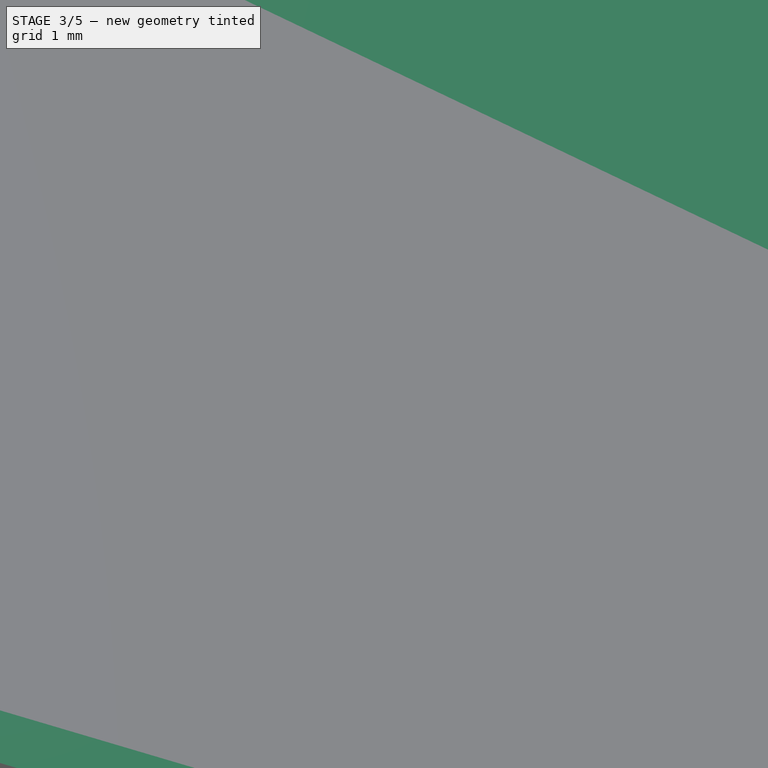
[diagram: stage 3 of 5 — iso view after this stage's code; geometry added in this stage tinted green]
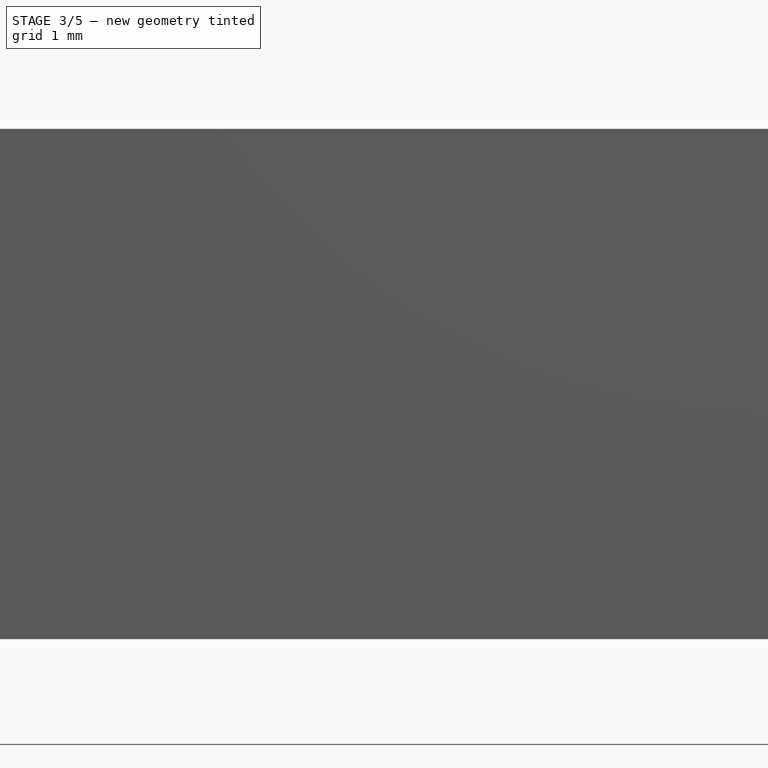
[diagram: stage 3 of 5 — front view after this stage's code; geometry added in this stage tinted green]
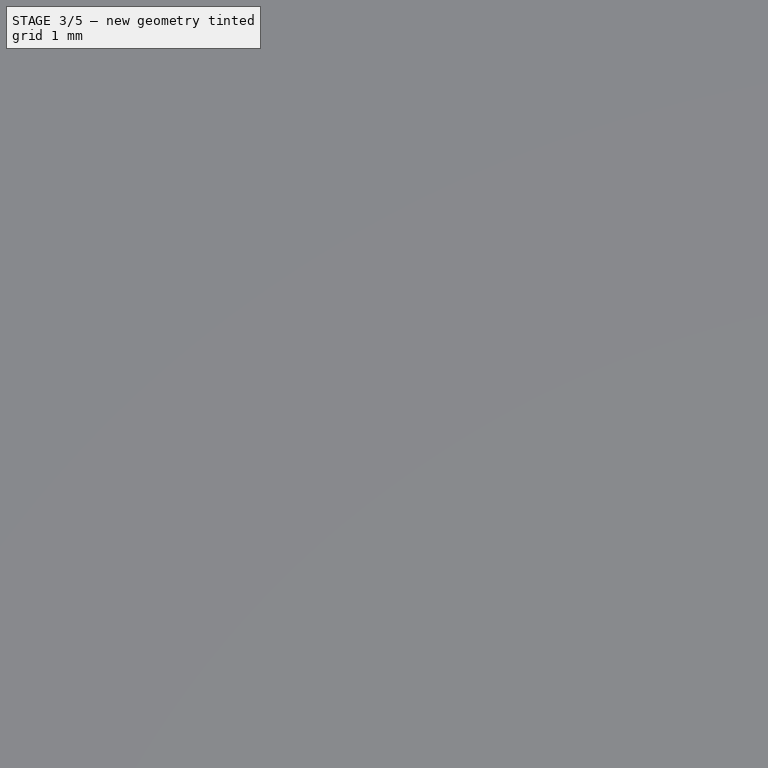
[diagram: stage 3 of 5 — top view after this stage's code; geometry added in this stage tinted green]
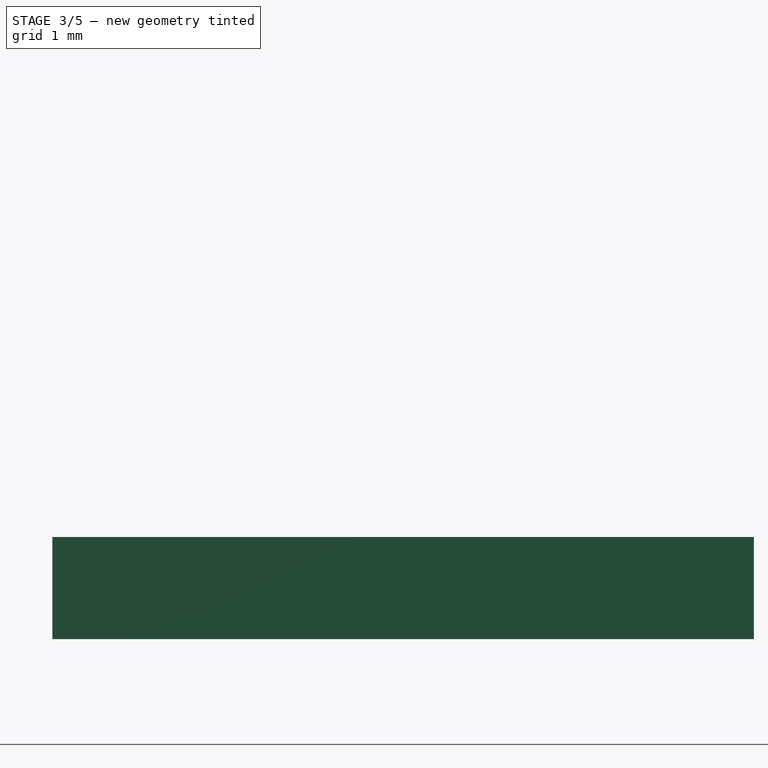
[diagram: stage 3 of 5 — right view after this stage's code; geometry added in this stage tinted green]
FEATURE [Sketcher::SketchObject] Sketch001
  ArcFitTolerance = 1e-06
  AttachmentSupport = -> [Pad]
  ExternalTypes = [0]
  FullyConstrained = true
  MakeInternals = false
  MapMode = 5
  Placement = pos=(0,0,9) rot=(0,0,1;0rad)
  _ExternalGeoVersion = 0
  expr: .Constraints.BoxHeight = <<Params>>.BoxHeight
  expr: .Constraints.BoxWidth = <<Params>>.BoxWidth
  expr: .Constraints.CornerRadius = <<Params>>.CornerRadius
  expr: .Constraints.Spacing = <<Params>>.Spacing
  sketch-geometry (20):
    g0: LineSegment StartX=-40.4 StartY=17 StartZ=0 EndX=-40.4 EndY=-17 EndZ=0
    g1: LineSegment StartX=-37 StartY=-20.4 StartZ=0 EndX=37 EndY=-20.4 EndZ=0
    g2: LineSegment StartX=40.4 StartY=-17 StartZ=0 EndX=40.4 EndY=17 EndZ=0
    g3: LineSegment StartX=37 StartY=20.4 StartZ=0 EndX=-37 EndY=20.4 EndZ=0
    g4: ArcOfCircle CenterX=-37 CenterY=17 CenterZ=0 NormalX=0 NormalY=0 NormalZ=1 AngleXU=0 Radius=3.4 StartAngle=1.5708 EndAngle=3.14159
    g5: ArcOfCircle CenterX=-37 CenterY=-17 CenterZ=0 NormalX=0 NormalY=0 NormalZ=1 AngleXU=0 Radius=3.4 StartAngle=3.14159 EndAngle=4.71239
    g6: ArcOfCircle CenterX=37 CenterY=-17 CenterZ=0 NormalX=0 NormalY=0 NormalZ=1 AngleXU=0 Radius=3.4 StartAngle=4.71239 EndAngle=6.28319
    g7: ArcOfCircle CenterX=37 CenterY=17 CenterZ=0 NormalX=0 NormalY=0 NormalZ=1 AngleXU=0 Radius=3.4 StartAngle=4e-16 EndAngle=1.5708
    g8: GeomPoint [constr] X=-40.4 Y=20.4 Z=0
    g9: GeomPoint [constr] X=40.4 Y=-20.4 Z=0
    g10: LineSegment [constr] StartX=-40 StartY=17 StartZ=0 EndX=-40 EndY=-17 EndZ=0
    g11: LineSegment [constr] StartX=-37 StartY=-20 StartZ=0 EndX=37 EndY=-20 EndZ=0
    g12: LineSegment [constr] StartX=40 StartY=-17 StartZ=0 EndX=40 EndY=17 EndZ=0
    g13: LineSegment [constr] StartX=37 StartY=20 StartZ=0 EndX=-37 EndY=20 EndZ=0
    g14: ArcOfCircle [constr] CenterX=-37 CenterY=17 CenterZ=0 NormalX=0 NormalY=0 NormalZ=1 AngleXU=0 Radius=3 StartAngle=1.5708 EndAngle=3.14159
    g15: ArcOfCircle [constr] CenterX=-37 CenterY=-17 CenterZ=0 NormalX=0 NormalY=0 NormalZ=1 AngleXU=0 Radius=3 StartAngle=3.14159 EndAngle=4.71239
    g16: ArcOfCircle [constr] CenterX=37 CenterY=-17 CenterZ=0 NormalX=0 NormalY=0 NormalZ=1 AngleXU=0 Radius=3 StartAngle=4.71239 EndAngle=6.28319
    g17: ArcOfCircle [constr] CenterX=37 CenterY=17 CenterZ=0 NormalX=0 NormalY=0 NormalZ=1 AngleXU=0 Radius=3 StartAngle=0 EndAngle=1.5708
    g18: GeomPoint [constr] X=-40 Y=20 Z=0
    g19: GeomPoint [constr] X=40 Y=-20 Z=0
  constraints (45):
    c: Tangent(g0,g4) = -1.5708
    c: Tangent(g0,g5) = -1.5708
    c: Tangent(g1,g5) = -1.5708
    c: Tangent(g1,g6) = -1.5708
    c: Tangent(g2,g6) = -1.5708
    c: Tangent(g2,g7) = -1.5708
    c: Tangent(g3,g7) = -1.5708
    c: Tangent(g3,g4) = -1.5708
    c: Vertical(g0)
    c: Vertical(g2)
    c: Horizontal(g1)
    c: Horizontal(g3)
    c: Equal(g4,g5)
    c: Equal(g5,g6)
    c: Equal(g6,g7)
    c: PointOnObject(g8,g0)
    c: PointOnObject(g8,g3)
    c: PointOnObject(g9,g1)
    c: PointOnObject(g9,g2)
    c: Tangent(g10,g14) = -1.5708
    c: Tangent(g10,g15) = -1.5708
    c: Tangent(g11,g15) = -1.5708
    c: Tangent(g11,g16) = -1.5708
    c: Tangent(g12,g16) = -1.5708
    c: Tangent(g12,g17) = -1.5708
    c: Tangent(g13,g17) = -1.5708
    c: Tangent(g13,g14) = -1.5708
    c: Vertical(g10)
    c: Vertical(g12)
    c: Horizontal(g11)
    c: Horizontal(g13)
    c: Equal(g14,g15)
    c: Equal(g15,g16)
    c: Equal(g16,g17)
    c: PointOnObject(g18,g10)
    c: PointOnObject(g18,g13)
    c: PointOnObject(g19,g11)
    c: PointOnObject(g19,g12)
    c: Symmetric(g18,g19,g-1)
    c: DistanceX(g10,g12) = 80  'BoxWidth'
    c: Radius(g14) = 3  'CornerRadius'
    c: DistanceY(g11,g13) = 40  'BoxHeight'
    c: Coincident(g6,g16)
    c: Coincident(g4,g14)
    c: DistanceY(g13,g3) = 0.4  'Spacing'
FEATURE [Sketcher::SketchObject] Sketch004  label="PcbLockFootprint"
  ArcFitTolerance = 1e-06
  AttachmentSupport = -> [Pad]
  ExternalGeometry = -> [Pad]
  ExternalTypes = [0]
  FullyConstrained = true
  MakeInternals = false
  MapMode = 5
  Placement = pos=(0,0,9) rot=(0,0,1;0rad)
  _ExternalGeoVersion = 0
  expr: .Constraints.PcbLockGap = <<Params>>.PcbLockGap
  expr: .Constraints.PcbLockHeight = <<Params>>.PcbLockHeight
  expr: .Constraints.PcbLockWidth = <<Params>>.PcbLockWidth
  sketch-geometry (8):
    g0: LineSegment StartX=-5.5 StartY=-7.5 StartZ=0 EndX=-5.5 EndY=-27.5 EndZ=0
    g1: LineSegment StartX=-5.5 StartY=-27.5 StartZ=0 EndX=-5 EndY=-27.5 EndZ=0
    g2: LineSegment StartX=-5 StartY=-27.5 StartZ=0 EndX=-5 EndY=-7.5 EndZ=0
    g3: LineSegment StartX=-5 StartY=-7.5 StartZ=0 EndX=-5.5 EndY=-7.5 EndZ=0
    g4: LineSegment StartX=5 StartY=-27.5 StartZ=0 EndX=5 EndY=-7.5 EndZ=0
    g5: LineSegment StartX=5 StartY=-7.5 StartZ=0 EndX=5.5 EndY=-7.5 EndZ=0
    g6: LineSegment StartX=5.5 StartY=-7.5 StartZ=0 EndX=5.5 EndY=-27.5 EndZ=0
    g7: LineSegment StartX=5.5 StartY=-27.5 StartZ=0 EndX=5 EndY=-27.5 EndZ=0
  constraints (22):
    c: Coincident(g0,g1)
    c: Coincident(g1,g2)
    c: Coincident(g2,g3)
    c: Coincident(g3,g0)
    c: Vertical(g0)
    c: Vertical(g2)
    c: Horizontal(g1)
    c: Horizontal(g3)
    c: PointOnObject(g1,g-3)
    c: DistanceX(g0,g2) = 0.5  'PcbLockGap'
    c: Coincident(g6,g7)
    c: Coincident(g7,g4)
    c: Coincident(g4,g5)
    c: Coincident(g5,g6)
    c: Vertical(g6)
    c: Vertical(g4)
    c: Horizontal(g7)
    c: Horizontal(g5)
    c: Symmetric(g6,g0,g-2)
    c: Symmetric(g4,g2,g-2)
    c: DistanceX(g2,g4) = 10  'PcbLockWidth'
    c: DistanceY(g0,g0) = 20  'PcbLockHeight'
FEATURE [PartDesign::SubShapeBinder] Binder
  BindCopyOnChange = 0
  BindMode = 0
  ClaimChildren = false
  Fuse = false
  MakeFace = true
  OffsetFill = false
  OffsetIntersection = false
  OffsetJoinType = 0
  OffsetOpenResult = false
  PartialLoad = false
  Placement = pos=(0,0,0) rot=(0,1,0;-3.14159rad)
  Refine = true
  Relative = false
  Support = -> [Body[Pocket004.]]
  _Version = 2
FEATURE [Sketcher::SketchObject] Sketch012  label="TopOutlineFootprint"
  ArcFitTolerance = 1e-06
  AttachmentSupport = -> [XY_Plane002]
  ExternalGeometry = -> [Binder]
  ExternalTypes = [0]
  FullyConstrained = true
  MakeInternals = false
  MapMode = 5
  _ExternalGeoVersion = 0
  sketch-geometry (8):
    g0: LineSegment StartX=-42.5 StartY=27.5 StartZ=0 EndX=42.5 EndY=27.5 EndZ=0
    g1: LineSegment StartX=47.5 StartY=22.5 StartZ=0 EndX=47.5 EndY=-22.5 EndZ=0
    g2: LineSegment StartX=42.5 StartY=-27.5 StartZ=0 EndX=-42.5 EndY=-27.5 EndZ=0
    g3: LineSegment StartX=-47.5 StartY=-22.5 StartZ=0 EndX=-47.5 EndY=22.5 EndZ=0
    g4: ArcOfCircle CenterX=-42.5 CenterY=22.5 CenterZ=0 NormalX=0 NormalY=0 NormalZ=1 AngleXU=0 Radius=5 StartAngle=1.5708 EndAngle=3.14159
    g5: ArcOfCircle CenterX=42.5 CenterY=22.5 CenterZ=0 NormalX=0 NormalY=0 NormalZ=1 AngleXU=0 Radius=5 StartAngle=-1.8e-15 EndAngle=1.5708
    g6: ArcOfCircle CenterX=42.5 CenterY=-22.5 CenterZ=0 NormalX=0 NormalY=0 NormalZ=1 AngleXU=0 Radius=5 StartAngle=4.71239 EndAngle=6.28319
    g7: ArcOfCircle CenterX=-42.5 CenterY=-22.5 CenterZ=0 NormalX=0 NormalY=0 NormalZ=1 AngleXU=0 Radius=5 StartAngle=3.14159 EndAngle=4.71239
  constraints (16):
    c: Coincident(g0,g-3)
    c: Coincident(g0,g-5)
    c: Coincident(g1,g-6)
    c: Coincident(g1,g-7)
    c: Coincident(g2,g-8)
    c: Coincident(g2,g-9)
    c: Coincident(g3,g-10)
    c: Coincident(g3,g-4)
    c: Coincident(g4,g3)
    c: Coincident(g5,g0)
    c: Coincident(g6,g1)
    c: Coincident(g7,g2)
    c: Tangent(g4,g0) = 1.5708
    c: Tangent(g5,g1) = 1.5708
    c: Tangent(g6,g2) = 1.5708
    c: Tangent(g7,g3) = 1.5708
FEATURE [PartDesign::Pad] Pad004  label="TopOutline"
  Direction = (0,0,1)
  Length = 8
  Length2 = 10
  Profile = -> Sketch012
  ReferenceAxis = -> Sketch012 [N_Axis]
  Refine = true
  SideType = 0
  Suppressed = false
  Type = 0
  Type2 = 0
  expr: Length = <<Params>>.TopHeight
FEATURE [Sketcher::SketchObject] Sketch013  label="TopPocketFootprint"
  ArcFitTolerance = 1e-06
  AttachmentSupport = -> [Pad004]
  ExternalGeometry = -> [Binder]
  ExternalTypes = [0]
  FullyConstrained = true
  MakeInternals = false
  MapMode = 5
  Placement = pos=(0,0,8) rot=(0,0,1;0rad)
  _ExternalGeoVersion = 0
  sketch-geometry (8):
    g0: LineSegment StartX=-37 StartY=20.4 StartZ=0 EndX=37 EndY=20.4 EndZ=0
    g1: LineSegment StartX=40.4 StartY=17 StartZ=0 EndX=40.4 EndY=-17 EndZ=0
    g2: LineSegment StartX=37 StartY=-20.4 StartZ=0 EndX=-37 EndY=-20.4 EndZ=0
    g3: LineSegment StartX=-40.4 StartY=-17 StartZ=0 EndX=-40.4 EndY=17 EndZ=0
    g4: ArcOfCircle CenterX=-37 CenterY=17 CenterZ=0 NormalX=0 NormalY=0 NormalZ=1 AngleXU=0 Radius=3.4 StartAngle=1.5708 EndAngle=3.14159
    g5: ArcOfCircle CenterX=37 CenterY=17 CenterZ=0 NormalX=0 NormalY=0 NormalZ=1 AngleXU=0 Radius=3.4 StartAngle=3e-16 EndAngle=1.5708
    g6: ArcOfCircle CenterX=37 CenterY=-17 CenterZ=0 NormalX=0 NormalY=0 NormalZ=1 AngleXU=0 Radius=3.4 StartAngle=4.71239 EndAngle=6.28319
    g7: ArcOfCircle CenterX=-37 CenterY=-17 CenterZ=0 NormalX=0 NormalY=0 NormalZ=1 AngleXU=0 Radius=3.4 StartAngle=3.14159 EndAngle=4.71239
  constraints (16):
    c: Coincident(g0,g-3)
    c: Coincident(g0,g-10)
    c: Coincident(g1,g-9)
    c: Coincident(g1,g-8)
    c: Coincident(g2,g-7)
    c: Coincident(g2,g-6)
    c: Coincident(g3,g-5)
    c: Coincident(g3,g-4)
    c: Coincident(g4,g3)
    c: Coincident(g5,g0)
    c: Coincident(g6,g1)
    c: Coincident(g7,g2)
    c: Tangent(g4,g0) = 1.5708
    c: Tangent(g5,g1) = 1.5708
    c: Tangent(g6,g2) = 1.5708
    c: Tangent(g7,g3) = 1.5708
FEATURE [PartDesign::Pocket] Pocket006  label="TopPocket"
  BaseFeature = -> Pad004
  Direction = (0,0,-1)
  Length = 6.4
  Length2 = 5
  Profile = -> Sketch013
  ReferenceAxis = -> Sketch013 [N_Axis]
  Refine = true
  SideType = 0
  Suppressed = false
  Type = 0
  Type2 = 0
  expr: Length = <<Params>>.TopHeight - <<Params>>.MainWall
FEATURE [Sketcher::SketchObject] Sketch014  label="TopWallFootprint"
  ArcFitTolerance = 1e-06
  AttachmentSupport = -> [Pocket006]
  ExternalGeometry = -> [Binder]
  ExternalTypes = [0]
  FullyConstrained = true
  MakeInternals = false
  MapMode = 5
  Placement = pos=(0,0,8) rot=(0,0,1;0rad)
  _ExternalGeoVersion = 0
  sketch-geometry (32):
    g0: LineSegment StartX=37.5 StartY=26.5 StartZ=0 EndX=37.5 EndY=24 EndZ=0
    g1: LineSegment StartX=38.5 StartY=27.5 StartZ=0 EndX=-38.5 EndY=27.5 EndZ=0
    g2: LineSegment StartX=42 StartY=-15.5 StartZ=0 EndX=42 EndY=15.5 EndZ=0
    g3: LineSegment StartX=47.5 StartY=18.5 StartZ=0 EndX=47.5 EndY=-18.5 EndZ=0
    g4: LineSegment StartX=35.5 StartY=-22 StartZ=0 EndX=-35.5 EndY=-22 EndZ=0
    g5: LineSegment StartX=38.5 StartY=-27.5 StartZ=0 EndX=-38.5 EndY=-27.5 EndZ=0
    g6: LineSegment StartX=-47.5 StartY=18.5 StartZ=0 EndX=-47.5 EndY=-18.5 EndZ=0
    g7: LineSegment StartX=-42 StartY=15.5 StartZ=0 EndX=-42 EndY=-15.5 EndZ=0
    g8: LineSegment StartX=-44 StartY=-17.5 StartZ=0 EndX=-46.5 EndY=-17.5 EndZ=0
    g9: LineSegment StartX=-44 StartY=17.5 StartZ=0 EndX=-46.5 EndY=17.5 EndZ=0
    g10: LineSegment StartX=-37.5 StartY=24 StartZ=0 EndX=-37.5 EndY=26.5 EndZ=0
    g11: LineSegment StartX=46.5 StartY=17.5 StartZ=0 EndX=44 EndY=17.5 EndZ=0
    g12: LineSegment StartX=46.5 StartY=-17.5 StartZ=0 EndX=44 EndY=-17.5 EndZ=0
    g13: LineSegment StartX=37.5 StartY=-26.5 StartZ=0 EndX=37.5 EndY=-24 EndZ=0
    g14: LineSegment StartX=-37.5 StartY=-26.5 StartZ=0 EndX=-37.5 EndY=-24 EndZ=0
    g15: LineSegment StartX=35.5 StartY=22 StartZ=0 EndX=-35.5 EndY=22 EndZ=0
    g16: ArcOfCircle CenterX=35.5 CenterY=24 CenterZ=0 NormalX=0 NormalY=0 NormalZ=1 AngleXU=0 Radius=2 StartAngle=4.71239 EndAngle=6.28319
    g17: ArcOfCircle CenterX=-35.5 CenterY=24 CenterZ=0 NormalX=0 NormalY=0 NormalZ=1 AngleXU=0 Radius=2 StartAngle=3.14159 EndAngle=4.71239
    g18: ArcOfCircle CenterX=44 CenterY=15.5 CenterZ=0 NormalX=0 NormalY=0 NormalZ=1 AngleXU=0 Radius=2 StartAngle=1.5708 EndAngle=3.14159
    g19: ArcOfCircle CenterX=44 CenterY=-15.5 CenterZ=0 NormalX=0 NormalY=0 NormalZ=1 AngleXU=0 Radius=2 StartAngle=3.14159 EndAngle=4.71239
    g20: ArcOfCircle CenterX=35.5 CenterY=-24 CenterZ=0 NormalX=0 NormalY=0 NormalZ=1 AngleXU=0 Radius=2 StartAngle=-9e-16 EndAngle=1.5708
    g21: ArcOfCircle CenterX=-35.5 CenterY=-24 CenterZ=0 NormalX=0 NormalY=0 NormalZ=1 AngleXU=0 Radius=2 StartAngle=1.5708 EndAngle=3.14159
    g22: ArcOfCircle CenterX=-44 CenterY=15.5 CenterZ=0 NormalX=0 NormalY=0 NormalZ=1 AngleXU=0 Radius=2 StartAngle=0 EndAngle=1.5708
    g23: ArcOfCircle CenterX=-44 CenterY=-15.5 CenterZ=0 NormalX=0 NormalY=0 NormalZ=1 AngleXU=0 Radius=2 StartAngle=4.71239 EndAngle=6.28319
    g24: ArcOfCircle CenterX=-46.5 CenterY=-18.5 CenterZ=0 NormalX=0 NormalY=0 NormalZ=1 AngleXU=0 Radius=1 StartAngle=1.5708 EndAngle=3.14159
    g25: ArcOfCircle CenterX=-46.5 CenterY=18.5 CenterZ=0 NormalX=0 NormalY=0 NormalZ=1 AngleXU=0 Radius=1 StartAngle=3.14159 EndAngle=4.71239
    g26: ArcOfCircle CenterX=-38.5 CenterY=26.5 CenterZ=0 NormalX=0 NormalY=0 NormalZ=1 AngleXU=0 Radius=1 StartAngle=0 EndAngle=1.57079
    g27: ArcOfCircle CenterX=38.5 CenterY=26.5 CenterZ=0 NormalX=0 NormalY=0 NormalZ=1 AngleXU=0 Radius=1 StartAngle=1.5708 EndAngle=3.14159
    g28: ArcOfCircle CenterX=46.5 CenterY=18.5 CenterZ=0 NormalX=0 NormalY=0 NormalZ=1 AngleXU=0 Radius=1 StartAngle=4.71239 EndAngle=6.28319
    g29: ArcOfCircle CenterX=46.5 CenterY=-18.5 CenterZ=0 NormalX=0 NormalY=0 NormalZ=1 AngleXU=0 Radius=1 StartAngle=6.28319 EndAngle=7.85398
    g30: ArcOfCircle CenterX=38.5 CenterY=-26.5 CenterZ=0 NormalX=0 NormalY=0 NormalZ=1 AngleXU=0 Radius=1 StartAngle=3.14159 EndAngle=4.71239
    g31: ArcOfCircle CenterX=-38.5 CenterY=-26.5 CenterZ=0 NormalX=0 NormalY=0 NormalZ=1 AngleXU=0 Radius=1 StartAngle=4.71239 EndAngle=6.28319
  constraints (65):
    c: Coincident(g0,g-4)
    c: Coincident(g0,g-5)
    c: Coincident(g1,g-3)
    c: Coincident(g1,g-10)
    c: Coincident(g2,g-15)
    c: Coincident(g2,g-14)
    c: Coincident(g3,g-11)
    c: Coincident(g3,g-18)
    c: Coincident(g4,g-22)
    c: Coincident(g4,g-23)
    c: Coincident(g5,g-19)
    c: Coincident(g5,g-26)
    c: Coincident(g6,g-33)
    c: Coincident(g6,g-27)
    c: Coincident(g7,g-30)
    c: Coincident(g8,g-29)
    c: Coincident(g8,g-28)
    c: Coincident(g9,g-31)
    c: Coincident(g9,g-32)
    c: Coincident(g10,g-8)
    c: Coincident(g10,g-9)
    c: Coincident(g11,g-12)
    c: Coincident(g11,g-13)
    c: Coincident(g12,g-17)
    c: Coincident(g12,g-16)
    c: Coincident(g13,g-20)
    c: Coincident(g13,g-21)
    c: Coincident(g14,g-25)
    c: Coincident(g14,g-24)
    c: Coincident(g15,g-6)
    c: Coincident(g15,g-7)
    c: Coincident(g16,g0)
    c: Tangent(g16,g15) = 1.5708
    c: Coincident(g17,g10)
    c: Tangent(g17,g15) = 1.5708
    c: Coincident(g18,g11)
    c: Coincident(g19,g12)
    c: Tangent(g18,g2) = 1.5708
    c: Tangent(g19,g2) = 1.5708
    c: Coincident(g20,g13)
    c: Coincident(g21,g14)
    c: Tangent(g20,g4) = -1.5708
    c: Tangent(g21,g4) = -1.5708
    c: Coincident(g22,g9)
    c: Tangent(g22,g7) = 1.5708
    c: Tangent(g23,g8) = 1.5708
    c: Vertical(g7)
    c: Coincident(g7,g23)
    c: Tangent(g23,g7,g7) = 1.5708
    c: Coincident(g24,g6)
    c: Tangent(g24,g8) = -1.5708
    c: Coincident(g25,g6)
    c: Tangent(g25,g9) = 1.5708
    c: Coincident(g26,g1)
    c: Coincident(g27,g1)
    c: Tangent(g27,g0) = -1.5708
    c: Tangent(g26,g10) = -1.5708
    c: Coincident(g28,g3)
    c: Coincident(g29,g3)
    c: Tangent(g29,g12) = -1.5708
    c: Tangent(g28,g11) = 1.5708
    c: Coincident(g30,g5)
    c: Coincident(g31,g5)
    c: Tangent(g31,g14) = -1.5708
    c: Tangent(g30,g13) = 1.5708
FEATURE [PartDesign::Pocket] Pocket007  label="TopWall"
  BaseFeature = -> Pocket006
  Direction = (0,0,-1)
  Length = 6.4
  Length2 = 5
  Profile = -> Sketch014
  ReferenceAxis = -> Sketch014 [N_Axis]
  Refine = true
  SideType = 0
  Suppressed = false
  Type = 3
  Type2 = 0
  UpToFace = -> Pocket006 [Face19]
  expr: Length = <<Params>>.TopHeight - <<Params>>.MainWall
FEATURE [App::Point] Origin003  label="Origin"
  Role = Origin
FEATURE [App::Point] Origin004  label="Origin"
  Role = Origin
FEATURE [App::Point] Origin005  label="Origin"
  Role = Origin
FEATURE [Sketcher::SketchObject] Sketch024  label="TallComponentsHolesFootprint"
  ArcFitTolerance = 1e-06
  AttachmentSupport = -> [Pocket007]
  ExternalGeometry = -> [Pocket007,Binder]
  ExternalTypes = [0,0,0,0,0]
  FullyConstrained = true
  MakeInternals = false
  MapMode = 5
  Placement = pos=(0,0,0) rot=(1,0,0;3.14159rad)
  _ExternalGeoVersion = 1
  sketch-geometry (10):
    g0: LineSegment StartX=-47.5 StartY=17 StartZ=0 EndX=-47.5 EndY=-8.5 EndZ=0
    g1: LineSegment StartX=-47.5 StartY=-8.5 StartZ=0 EndX=-29 EndY=-8.5 EndZ=0
    g2: LineSegment StartX=-29 StartY=-8.5 StartZ=0 EndX=-29 EndY=7.9 EndZ=0
    g3: LineSegment StartX=24 StartY=5.2 StartZ=0 EndX=24 EndY=-5.8 EndZ=0
    g4: LineSegment StartX=24 StartY=-5.8 StartZ=0 EndX=47.5 EndY=-5.8 EndZ=0
    g5: LineSegment StartX=47.5 StartY=-5.8 StartZ=0 EndX=47.5 EndY=5.2 EndZ=0
    g6: LineSegment StartX=47.5 StartY=5.2 StartZ=0 EndX=24 EndY=5.2 EndZ=0
    g7: LineSegment StartX=-29 StartY=7.9 StartZ=0 EndX=-40.4 EndY=7.9 EndZ=0
    g8: LineSegment StartX=-40.4 StartY=17 StartZ=0 EndX=-40.4 EndY=7.9 EndZ=0
    g9: LineSegment StartX=-40.4 StartY=17 StartZ=0 EndX=-47.5 EndY=17 EndZ=0
  constraints (29):
    c: Coincident(g0,g1)
    c: Coincident(g1,g2)
    c: Vertical(g0)
    c: Vertical(g2)
    c: Horizontal(g1)
    c: PointOnObject(g0,g-4)
    c: Coincident(g3,g4)
    c: Coincident(g4,g5)
    c: Coincident(g5,g6)
    c: Coincident(g6,g3)
    c: Vertical(g3)
    c: Vertical(g5)
    c: Horizontal(g4)
    c: Horizontal(g6)
    c: PointOnObject(g4,g-3)
    c: PointOnObject(g-5,g6)
    c: PointOnObject(g-5,g4)
    c: PointOnObject(g-6,g1)
    c: DistanceY(g2,g2) = 16.4
    c: DistanceX(g-1,g3) = 24
    c: DistanceX(g2,g-1) = 29
    c: Coincident(g7,g2)
    c: Horizontal(g7)
    c: Coincident(g8,g-7)
    c: Vertical(g8)
    c: Coincident(g9,g8)
    c: Horizontal(g9)
    c: Coincident(g8,g7)
    c: Coincident(g9,g0)
FEATURE [PartDesign::Pocket] Pocket014  label="TallComponentsHoles"
  BaseFeature = -> Pocket007
  Direction = (0,0,1)
  Length = 0
  Length2 = 5
  Profile = -> Sketch024
  ReferenceAxis = -> Sketch024 [N_Axis]
  Refine = true
  SideType = 0
  Suppressed = false
  Type = 3
  Type2 = 0
  UpToFace = -> Pocket007 [Face51]
FEATURE [Sketcher::SketchObject] Sketch015  label="TopFrontIoHoleFootprint"
  ArcFitTolerance = 1e-06
  AttachmentSupport = -> [Pocket007]
  ExternalGeometry = -> [Pocket007,Pocket014]
  ExternalTypes = [0,0,0,0]
  FullyConstrained = true
  MakeInternals = false
  MapMode = 5
  Placement = pos=(-47.5,0,0) rot=(0.57735,-0.57735,-0.57735;2.0944rad)
  _ExternalGeoVersion = 0
  sketch-geometry (5):
    g0: LineSegment [constr] StartX=17 StartY=-9 StartZ=0 EndX=17 EndY=8 EndZ=0
    g1: LineSegment StartX=17 StartY=8 StartZ=0 EndX=17 EndY=1.6 EndZ=0
    g2: LineSegment StartX=17 StartY=1.6 StartZ=0 EndX=-8.5 EndY=1.6 EndZ=0
    g3: LineSegment StartX=-8.5 StartY=1.6 StartZ=0 EndX=-8.5 EndY=8 EndZ=0
    g4: LineSegment StartX=17 StartY=8 StartZ=0 EndX=-8.5 EndY=8 EndZ=0
  constraints (13):
    c: Coincident(g0,g-3)
    c: PointOnObject(g0,g-4)
    c: Vertical(g0)
    c: Coincident(g1,g0)
    c: PointOnObject(g1,g0)
    c: PointOnObject(g1,g-6)
    c: Coincident(g2,g1)
    c: Coincident(g2,g-5)
    c: Coincident(g3,g2)
    c: PointOnObject(g3,g-4)
    c: Vertical(g3)
    c: Coincident(g4,g0)
    c: Coincident(g4,g3)
FEATURE [PartDesign::Pocket] Pocket008  label="TopFrontIoHole"
  BaseFeature = -> Pocket014
  Direction = (1,0,0)
  Length = 0
  Length2 = 5
  Profile = -> Sketch015
  ReferenceAxis = -> Sketch015 [N_Axis]
  Refine = true
  SideType = 0
  Suppressed = false
  Type = 3
  Type2 = 0
  UpToFace = -> Pocket007 [Face41]
FEATURE [PartDesign::Chamfer] Chamfer001
  Angle = 30
  Base = -> Pocket004 [Edge47,Edge48,Edge49,Edge37,Edge38,Edge39,Edge40,Edge41,Edge42]
  BaseFeature = -> Pocket004
  ChamferType = 2
  FlipDirection = true
  Refine = true
  Size = 0.8
  Size2 = 1
  SupportTransform = false
  Suppressed = false
  UseAllEdges = false
  expr: Size = <<Params>>.MainWall / 2
FEATURE [PartDesign::Chamfer] Chamfer002
  Angle = 30
  Base = -> Chamfer001 [Edge7]
  BaseFeature = -> Chamfer001
  ChamferType = 2
  FlipDirection = true
  Refine = true
  Size = 0.8
  Size2 = 1
  SupportTransform = false
  Suppressed = false
  UseAllEdges = false
  expr: Size = <<Params>>.MainWall / 2
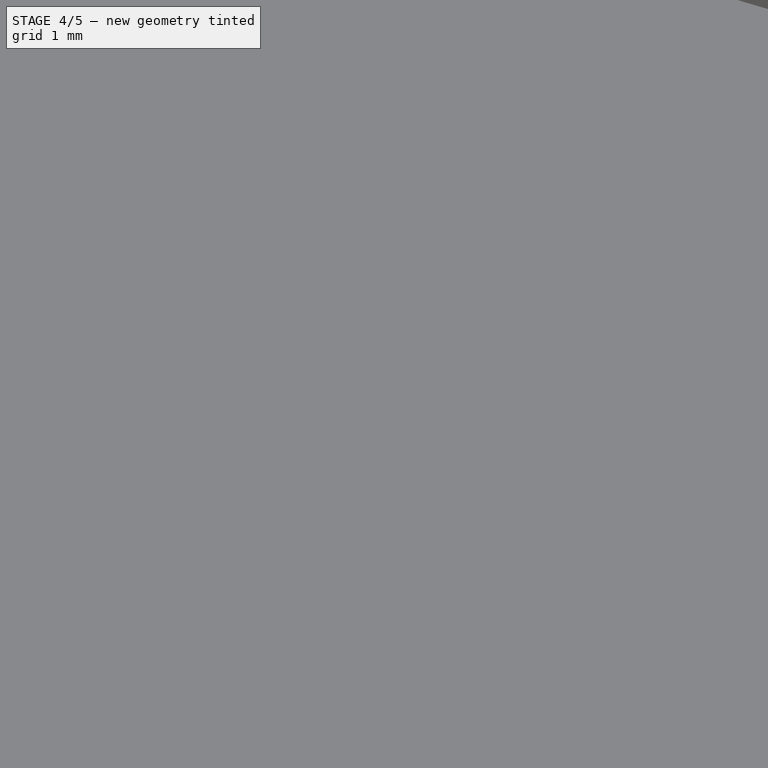
[diagram: stage 4 of 5 — iso view after this stage's code; geometry added in this stage tinted green]
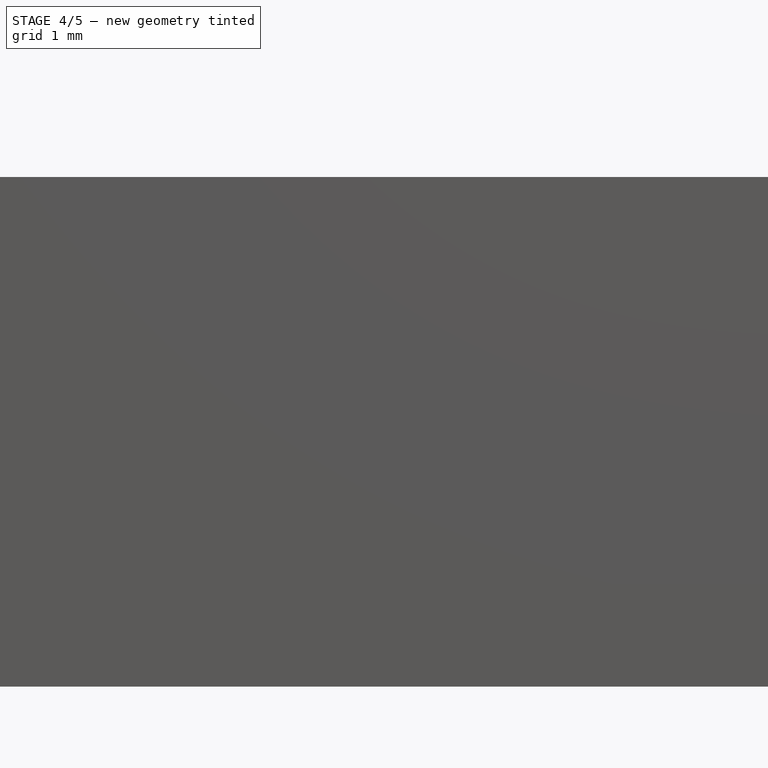
[diagram: stage 4 of 5 — front view after this stage's code; geometry added in this stage tinted green]
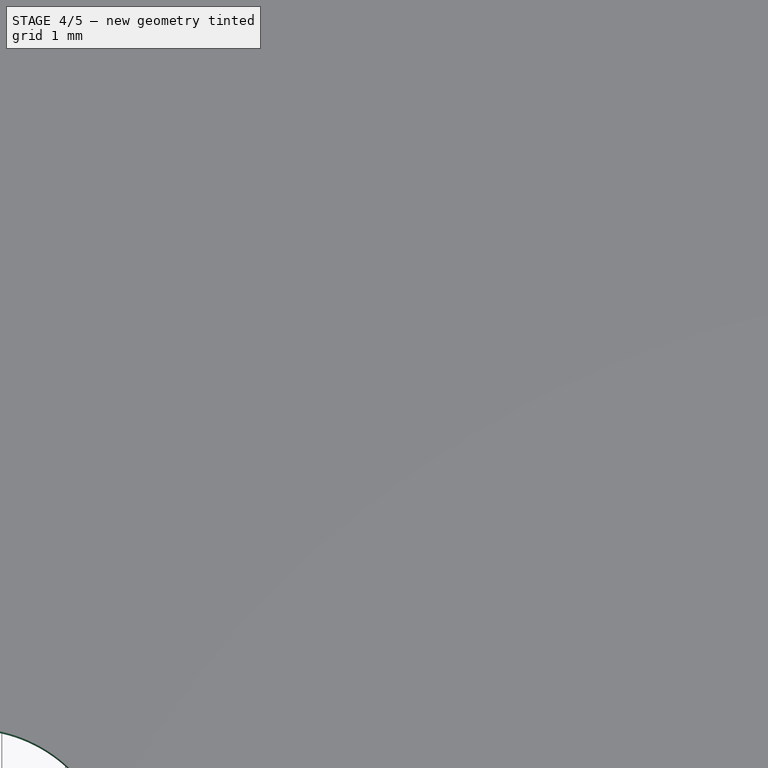
[diagram: stage 4 of 5 — top view after this stage's code; geometry added in this stage tinted green]
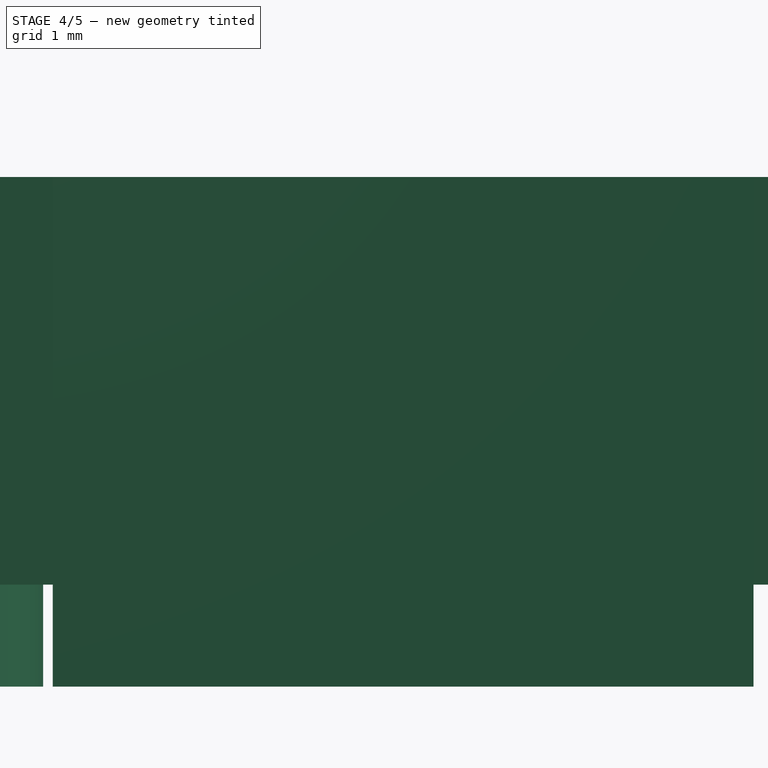
[diagram: stage 4 of 5 — right view after this stage's code; geometry added in this stage tinted green]
FEATURE [Sketcher::SketchObject] Sketch016  label="TopBackIoHoleFootprint"
  ArcFitTolerance = 1e-06
  AttachmentSupport = -> [Pocket008]
  ExternalGeometry = -> [Binder,Pocket008]
  ExternalTypes = [0,0,0,0]
  FullyConstrained = true
  MakeInternals = false
  MapMode = 5
  Placement = pos=(42,0,0) rot=(0.57735,0.57735,0.57735;2.0944rad)
  _ExternalGeoVersion = 0
  sketch-geometry (6):
    g0: LineSegment [constr] StartX=5.8 StartY=-9 StartZ=0 EndX=5.8 EndY=8 EndZ=0
    g1: LineSegment [constr] StartX=-5.2 StartY=-9 StartZ=0 EndX=-5.2 EndY=8 EndZ=0
    g2: LineSegment StartX=-5.2 StartY=8 StartZ=0 EndX=5.8 EndY=8 EndZ=0
    g3: LineSegment StartX=5.8 StartY=8 StartZ=0 EndX=5.8 EndY=1.6 EndZ=0
    g4: LineSegment StartX=5.8 StartY=1.6 StartZ=0 EndX=-5.2 EndY=1.6 EndZ=0
    g5: LineSegment StartX=-5.2 StartY=1.6 StartZ=0 EndX=-5.2 EndY=8 EndZ=0
  constraints (16):
    c: Coincident(g0,g-4)
    c: PointOnObject(g0,g-5)
    c: Vertical(g0)
    c: Coincident(g1,g-3)
    c: PointOnObject(g1,g-5)
    c: Vertical(g1)
    c: Coincident(g2,g1)
    c: Coincident(g2,g0)
    c: Coincident(g3,g0)
    c: PointOnObject(g3,g0)
    c: Coincident(g4,g3)
    c: PointOnObject(g4,g1)
    c: Horizontal(g4)
    c: Coincident(g5,g4)
    c: Coincident(g5,g1)
    c: PointOnObject(g4,g-6)
FEATURE [PartDesign::Pocket] Pocket009  label="TopBackIoHole"
  BaseFeature = -> Pocket008
  Direction = (-1,0,0)
  Length = 0
  Length2 = 5
  Profile = -> Sketch016
  ReferenceAxis = -> Sketch016 [N_Axis]
  Refine = true
  SideType = 0
  Suppressed = false
  Type = 3
  Type2 = 0
  UpToFace = -> Pocket008 [Face26]
FEATURE [Sketcher::SketchObject] Sketch022  label="TopSpeakerGrillFootprint"
  ArcFitTolerance = 1e-06
  AttachmentSupport = -> [Pocket009]
  ExternalTypes = [0]
  FullyConstrained = true
  MakeInternals = false
  MapMode = 5
  Placement = pos=(0,0,0) rot=(1,0,0;3.14159rad)
  _ExternalGeoVersion = 0
  sketch-geometry (13):
    g0: LineSegment [constr] StartX=-22.7 StartY=6 StartZ=0 EndX=-22.7 EndY=-6 EndZ=0
    g1: ArcOfCircle CenterX=-25.95 CenterY=0 CenterZ=0 NormalX=0 NormalY=0 NormalZ=1 AngleXU=0 Radius=0.8 StartAngle=1.5708 EndAngle=4.71239
    g2: ArcOfCircle CenterX=-19.45 CenterY=0 CenterZ=0 NormalX=0 NormalY=0 NormalZ=1 AngleXU=0 Radius=0.8 StartAngle=4.71239 EndAngle=7.85398
    g3: LineSegment StartX=-25.95 StartY=0.8 StartZ=0 EndX=-19.45 EndY=0.8 EndZ=0
    g4: LineSegment StartX=-25.95 StartY=-0.8 StartZ=0 EndX=-19.45 EndY=-0.8 EndZ=0
    g5: ArcOfCircle CenterX=-24.2 CenterY=4 CenterZ=0 NormalX=0 NormalY=0 NormalZ=1 AngleXU=0 Radius=0.8 StartAngle=1.5708 EndAngle=4.71239
    g6: ArcOfCircle CenterX=-21.2 CenterY=4 CenterZ=0 NormalX=0 NormalY=0 NormalZ=1 AngleXU=0 Radius=0.8 StartAngle=4.71239 EndAngle=7.85398
    g7: LineSegment StartX=-24.2 StartY=4.8 StartZ=0 EndX=-21.2 EndY=4.8 EndZ=0
    g8: LineSegment StartX=-24.2 StartY=3.2 StartZ=0 EndX=-21.2 EndY=3.2 EndZ=0
    g9: ArcOfCircle CenterX=-24.2 CenterY=-4 CenterZ=0 NormalX=0 NormalY=0 NormalZ=1 AngleXU=0 Radius=0.8 StartAngle=1.5708 EndAngle=4.71239
    g10: ArcOfCircle CenterX=-21.2 CenterY=-4 CenterZ=0 NormalX=0 NormalY=0 NormalZ=1 AngleXU=0 Radius=0.8 StartAngle=4.71239 EndAngle=7.85398
    g11: LineSegment StartX=-24.2 StartY=-3.2 StartZ=0 EndX=-21.2 EndY=-3.2 EndZ=0
    g12: LineSegment StartX=-24.2 StartY=-4.8 StartZ=0 EndX=-21.2 EndY=-4.8 EndZ=0
  constraints (29):
    c: DistanceX(g0,g-1) = 22.7
    c: Tangent(g1,g3) = 1.5708
    c: Tangent(g1,g4) = -1.5708
    c: Tangent(g2,g3) = 1.5708
    c: Tangent(g2,g4) = -1.5708
    c: Equal(g1,g2)
    c: Symmetric(g1,g2,g0)
    c: PointOnObject(g2,g-1)
    c: DistanceX(g1,g2) = 6.5
    c: Radius(g1) = 0.8
    c: Symmetric(g0,g0,g-1)
    c: DistanceY(g0,g0) = 12
    c: Tangent(g5,g7) = 1.5708
    c: Tangent(g5,g8) = -1.5708
    c: Tangent(g6,g7) = 1.5708
    c: Tangent(g6,g8) = -1.5708
    c: Equal(g5,g6)
    c: Symmetric(g6,g5,g0)
    c: Tangent(g9,g11) = 1.5708
    c: Tangent(g9,g12) = -1.5708
    c: Tangent(g10,g11) = 1.5708
    c: Tangent(g10,g12) = -1.5708
    c: Equal(g9,g10)
    c: Symmetric(g10,g9,g0)
    c: Equal(g9,g5)
    c: Equal(g5,g1)
    c: Symmetric(g5,g9,g-1)
    c: DistanceX(g5,g6) = 3
    c: DistanceY(g9,g5) = 8
FEATURE [Sketcher::SketchObject] Sketch025  label="InnerWallsFootprint"
  ArcFitTolerance = 1e-06
  AttachmentSupport = -> [Pocket009]
  ExternalGeometry = -> [Pocket009]
  ExternalTypes = [0,0,0,0,0,0,0]
  FullyConstrained = true
  MakeInternals = false
  MapMode = 5
  Placement = pos=(0,0,0) rot=(1,0,0;3.14159rad)
  _ExternalGeoVersion = 1
  expr: .Constraints.InnerWall = <<Params>>.InnerWall
  sketch-geometry (25):
    g0: LineSegment StartX=-29 StartY=7.9 StartZ=0 EndX=-29 EndY=-8.5 EndZ=0
    g1: LineSegment StartX=-40.4 StartY=-8.5 StartZ=0 EndX=-40.4 EndY=-9.5 EndZ=0
    g2: LineSegment [constr] StartX=-29 StartY=-8.5 StartZ=0 EndX=-28 EndY=-8.5 EndZ=0
    g3: LineSegment StartX=-28 StartY=-8.5 StartZ=0 EndX=-28 EndY=8.9 EndZ=0
    g4: LineSegment StartX=-40.4 StartY=-9.5 StartZ=0 EndX=-28 EndY=-9.5 EndZ=0
    g5: LineSegment StartX=-28 StartY=-8.5 StartZ=0 EndX=-28 EndY=-9.5 EndZ=0
    g6: LineSegment StartX=40.4 StartY=5.2 StartZ=0 EndX=24 EndY=5.2 EndZ=0
    g7: LineSegment StartX=24 StartY=5.2 StartZ=0 EndX=24 EndY=-5.8 EndZ=0
    g8: LineSegment StartX=24 StartY=-5.8 StartZ=0 EndX=40.4 EndY=-5.8 EndZ=0
    g9: LineSegment StartX=40.4 StartY=5.2 StartZ=0 EndX=40.4 EndY=6.2 EndZ=0
    g10: LineSegment [constr] StartX=24 StartY=5.2 StartZ=0 EndX=23 EndY=5.2 EndZ=0
    g11: LineSegment StartX=40.4 StartY=-5.8 StartZ=0 EndX=40.4 EndY=-6.8 EndZ=0
    g12: LineSegment StartX=40.4 StartY=-6.8 StartZ=0 EndX=23 EndY=-6.8 EndZ=0
    g13: LineSegment StartX=23 StartY=5.2 StartZ=0 EndX=23 EndY=-6.8 EndZ=0
    g14: LineSegment StartX=40.4 StartY=6.2 StartZ=0 EndX=23 EndY=6.2 EndZ=0
    g15: LineSegment StartX=23 StartY=5.2 StartZ=0 EndX=23 EndY=6.2 EndZ=0
    g16: LineSegment StartX=-34.4 StartY=8.9 StartZ=0 EndX=-34.4 EndY=20.4 EndZ=0
    g17: LineSegment StartX=-34.4 StartY=20.4 StartZ=0 EndX=-33.4 EndY=20.4 EndZ=0
    g18: LineSegment StartX=-33.4 StartY=20.4 StartZ=0 EndX=-33.4 EndY=8.9 EndZ=0
    g19: LineSegment StartX=-33.4 StartY=8.9 StartZ=0 EndX=-34.4 EndY=8.9 EndZ=0
    g20: LineSegment StartX=-29 StartY=7.9 StartZ=0 EndX=-34.4 EndY=7.9 EndZ=0
    g21: LineSegment StartX=-34.4 StartY=7.9 StartZ=0 EndX=-34.4 EndY=8.9 EndZ=0
    g22: LineSegment StartX=-34.4 StartY=8.9 StartZ=0 EndX=-28 EndY=8.9 EndZ=0
    g23: LineSegment [constr] StartX=-40.4 StartY=7.9 StartZ=0 EndX=-40.4 EndY=-8.5 EndZ=0
    g24: LineSegment StartX=-40.4 StartY=-8.5 StartZ=0 EndX=-29 EndY=-8.5 EndZ=0
  constraints (65):
    c: Coincident(g0,g-4)
    c: Coincident(g0,g-8)
    c: Vertical(g1)
    c: DistanceY(g1,g1) = 1  'InnerWall'
    c: Coincident(g2,g0)
    c: Horizontal(g2)
    c: Equal(g2,g1)
    c: Coincident(g3,g2)
    c: Vertical(g3)
    c: Coincident(g4,g1)
    c: Horizontal(g4)
    c: Coincident(g5,g2)
    c: Vertical(g5)
    c: Coincident(g5,g4)
    c: Coincident(g6,g-5)
    c: Coincident(g6,g-7)
    c: Coincident(g7,g6)
    c: Coincident(g7,g-7)
    c: Coincident(g8,g7)
    c: Coincident(g8,g-6)
    c: Coincident(g9,g6)
    c: Angle(g9,g6) = 1.5708
    c: Equal(g1,g9)
    c: Coincident(g10,g6)
    c: Horizontal(g10)
    c: Equal(g10,g9)
    c: Coincident(g11,g8)
    c: Vertical(g11)
    c: Equal(g11,g9)
    c: Coincident(g12,g11)
    c: Horizontal(g12)
    c: Coincident(g13,g10)
    c: Vertical(g13)
    c: Coincident(g13,g12)
    c: Coincident(g14,g9)
    c: Horizontal(g14)
    c: Coincident(g15,g10)
    c: Vertical(g15)
    c: Coincident(g15,g14)
    c: PointOnObject(g16,g-9)
    c: Vertical(g16)
    c: Coincident(g17,g16)
    c: Coincident(g18,g17)
    c: Vertical(g18)
    c: Coincident(g19,g18)
    c: Coincident(g19,g16)
    c: DistanceX(g18,g-4) = 4.4
    c: Coincident(g20,g0)
    c: Horizontal(g20)
    c: Horizontal(g19)
    c: Horizontal(g17)
    c: Coincident(g21,g20)
    c: Vertical(g21)
    c: Coincident(g21,g16)
    c: Equal(g17,g1)
    c: Equal(g21,g1)
    c: Coincident(g22,g16)
    c: Coincident(g22,g3)
    c: Horizontal(g22)
    c: Coincident(g23,g-3)
    c: Vertical(g23)
    c: PointOnObject(g23,g-8)
    c: Coincident(g1,g23)
    c: Coincident(g24,g1)
    c: Coincident(g24,g0)
FEATURE [PartDesign::Pad] Pad006  label="InnerWall"
  BaseFeature = -> Pocket009
  Direction = (0,0,-1)
  Length = -8
  Length2 = 10
  Profile = -> Sketch025
  ReferenceAxis = -> Sketch025 [N_Axis]
  Refine = true
  SideType = 0
  Suppressed = false
  Type = 0
  Type2 = 0
  expr: Length = -<<Params>>.TopHeight
FEATURE [PartDesign::Pad] Pad005  label="TopCoverMating"
  BaseFeature = -> Pad006
  Direction = (0,0,1)
  Length = 1.5
  Length2 = 10
  Profile = -> Sketch017
  ReferenceAxis = -> Sketch017 [N_Axis]
  Refine = true
  SideType = 0
  Suppressed = false
  Type = 0
  Type2 = 0
  expr: Length = <<Params>>.MagnetOverlap
FEATURE [Sketcher::SketchObject] Sketch021  label="TopMagnetHoleFootprint"
  ArcFitTolerance = 1e-06
  AttachmentSupport = -> [Pad005]
  ExternalGeometry = -> [Pad005]
  ExternalTypes = [0]
  FullyConstrained = true
  MakeInternals = false
  MapMode = 5
  Placement = pos=(0,0,9.5) rot=(0,0,1;0rad)
  _ExternalGeoVersion = 0
  sketch-geometry (4):
    g0: Circle CenterX=-42.5 CenterY=22.5 CenterZ=0 NormalX=0 NormalY=0 NormalZ=1 AngleXU=0 Radius=0.5
    g1: Circle CenterX=42.5 CenterY=22.5 CenterZ=0 NormalX=0 NormalY=0 NormalZ=1 AngleXU=0 Radius=0.5
    g2: Circle CenterX=42.5 CenterY=-22.5 CenterZ=0 NormalX=0 NormalY=0 NormalZ=1 AngleXU=0 Radius=0.5
    g3: Circle CenterX=-42.5 CenterY=-22.5 CenterZ=0 NormalX=0 NormalY=0 NormalZ=1 AngleXU=0 Radius=0.5
  constraints (8):
    c: Coincident(g0,g-3)
    c: Coincident(g1,g-4)
    c: Coincident(g2,g-5)
    c: Coincident(g3,g-6)
    c: Equal(g0,g1)
    c: Equal(g1,g2)
    c: Equal(g2,g3)
    c: Diameter(g0) = 1
FEATURE [PartDesign::Hole] Hole002  label="TopMagnetHole"
  BaseFeature = -> Pad005
  BaseProfileType = 6
  CustomThreadClearance = 0
  Depth = 3.3
  DepthType = 0
  Diameter = 4.18
  DrillForDepth = false
  DrillPoint = 0
  DrillPointAngle = 118
  HoleCutCountersinkAngle = 90
  HoleCutCustomValues = false
  HoleCutDepth = 0
  HoleCutDiameter = 6.1
  HoleCutType = 0
  ModelThread = false
  Profile = -> Sketch021
  Refine = true
  Suppressed = false
  Tapered = false
  TaperedAngle = 90
  ThreadClass = 0
  ThreadDepth = 3.3
  ThreadDepthType = 0
  ThreadDiameter = 4.18
  ThreadDirection = 0
  ThreadFit = 0
  ThreadSize = 0
  ThreadType = 0
  Threaded = false
  UseCustomThreadClearance = false
  expr: Depth = <<Params>>.MagnetHeight + <<Params>>.CoverMatingSpacing
  expr: Diameter = <<Params>>.MagnetDiameter + <<Params>>.MagnetSpacing
FEATURE [PartDesign::Pocket] Pocket012  label="TopSpeakerGrill"
  BaseFeature = -> Hole002
  Direction = (0,0,1)
  Length = 5
  Length2 = 5
  Profile = -> Sketch022
  ReferenceAxis = -> Sketch022 [N_Axis]
  Refine = true
  SideType = 0
  Suppressed = false
  Type = 2
  Type2 = 0
FEATURE [Sketcher::SketchObject] Sketch023  label="TopButtonHolesFootprint"
  ArcFitTolerance = 1e-06
  AttachmentSupport = -> [Pocket012]
  ExternalGeometry = -> [Pocket012]
  ExternalTypes = [0,0,0,0]
  FullyConstrained = true
  MakeInternals = false
  MapMode = 5
  Placement = pos=(0,0,0) rot=(1,0,0;3.14159rad)
  _ExternalGeoVersion = 0
  sketch-geometry (18):
    g0: LineSegment [constr] StartX=-40.4 StartY=15.6 StartZ=0 EndX=40.4 EndY=15.6 EndZ=0
    g1: LineSegment [constr] StartX=-40.4 StartY=11.6 StartZ=0 EndX=40.4 EndY=11.6 EndZ=0
    g2: LineSegment [constr] StartX=-40.4 StartY=7.6 StartZ=0 EndX=40.4 EndY=7.6 EndZ=0
    g3: LineSegment [constr] StartX=-24.3 StartY=20.4 StartZ=0 EndX=-24.3 EndY=-20.4 EndZ=0
    g4: LineSegment [constr] StartX=-15.4 StartY=20.4 StartZ=0 EndX=-15.4 EndY=-20.4 EndZ=0
    g5: LineSegment [constr] StartX=-6.5 StartY=20.4 StartZ=0 EndX=-6.5 EndY=-20.4 EndZ=0
    g6: LineSegment [constr] StartX=2.4 StartY=20.4 StartZ=0 EndX=2.4 EndY=-20.4 EndZ=0
    g7: LineSegment [constr] StartX=11.3 StartY=20.4 StartZ=0 EndX=11.3 EndY=-20.4 EndZ=0
    g8: Circle CenterX=-24.3 CenterY=15.6 CenterZ=0 NormalX=0 NormalY=0 NormalZ=1 AngleXU=0 Radius=2.25
    g9: Circle CenterX=-15.4 CenterY=11.6 CenterZ=0 NormalX=0 NormalY=0 NormalZ=1 AngleXU=0 Radius=2.25
    g10: Circle CenterX=-6.5 CenterY=15.6 CenterZ=0 NormalX=0 NormalY=0 NormalZ=1 AngleXU=0 Radius=2.25
    g11: Circle CenterX=-6.5 CenterY=7.6 CenterZ=0 NormalX=0 NormalY=0 NormalZ=1 AngleXU=0 Radius=2.25
    g12: Circle CenterX=2.4 CenterY=11.6 CenterZ=0 NormalX=0 NormalY=0 NormalZ=1 AngleXU=0 Radius=2.25
    g13: Circle CenterX=11.3 CenterY=15.6 CenterZ=0 NormalX=0 NormalY=0 NormalZ=1 AngleXU=0 Radius=2.25
    g14: LineSegment [constr] StartX=37 StartY=-20.4 StartZ=0 EndX=-37 EndY=-20.4 EndZ=0
    g15: LineSegment [constr] StartX=37 StartY=20.4 StartZ=0 EndX=-37 EndY=20.4 EndZ=0
    g16: LineSegment [constr] StartX=-40.4 StartY=-17 StartZ=0 EndX=-40.4 EndY=17 EndZ=0
    g17: LineSegment [constr] StartX=40.4 StartY=-17 StartZ=0 EndX=40.4 EndY=17 EndZ=0
  constraints (58):
    c: Horizontal(g0)
    c: Horizontal(g1)
    c: Horizontal(g2)
    c: Vertical(g3)
    c: Vertical(g4)
    c: Vertical(g5)
    c: Vertical(g6)
    c: Vertical(g7)
    c: DistanceX(g5) = -6.5
    c: DistanceX(g4,g5) = 8.9
    c: DistanceX(g5,g6) = 8.9
    c: DistanceX(g6,g7) = 8.9
    c: DistanceX(g3,g4) = 8.9
    c: DistanceY(g2) = 7.6
    c: DistanceY(g2,g1) = 4
    c: DistanceY(g1,g0) = 4
    c: PointOnObject(g8,g0)
    c: PointOnObject(g9,g1)
    c: PointOnObject(g10,g0)
    c: PointOnObject(g11,g2)
    c: PointOnObject(g12,g6)
    c: PointOnObject(g13,g7)
    c: PointOnObject(g8,g3)
    c: PointOnObject(g9,g4)
    c: PointOnObject(g10,g5)
    c: PointOnObject(g11,g5)
    c: PointOnObject(g12,g1)
    c: PointOnObject(g13,g0)
    c: Equal(g8,g9)
    c: Equal(g9,g10)
    c: Equal(g10,g11)
    c: Equal(g11,g12)
    c: Equal(g12,g13)
    c: Diameter(g8) = 4.5  'Diameter'
    c: Coincident(g14,g-4)
    c: Coincident(g14,g-5)
    c: Coincident(g15,g-3)
    c: Coincident(g15,g-6)
    c: Coincident(g16,g-5)
    c: Coincident(g16,g-6)
    c: Coincident(g17,g-4)
    c: Coincident(g17,g-3)
    c: PointOnObject(g2,g17)
    c: PointOnObject(g1,g17)
    c: PointOnObject(g0,g17)
    c: PointOnObject(g7,g15)
    c: PointOnObject(g6,g15)
    c: PointOnObject(g5,g15)
    c: PointOnObject(g4,g15)
    c: PointOnObject(g3,g15)
    c: PointOnObject(g0,g16)
    c: PointOnObject(g1,g16)
    c: PointOnObject(g2,g16)
    c: PointOnObject(g3,g14)
    c: PointOnObject(g4,g14)
    c: PointOnObject(g5,g14)
    c: PointOnObject(g6,g14)
    c: PointOnObject(g7,g14)
FEATURE [PartDesign::Pocket] Pocket013  label="TopButtonHoles"
  BaseFeature = -> Pocket012
  Direction = (0,0,1)
  Length = 0
  Length2 = 5
  Profile = -> Sketch023
  ReferenceAxis = -> Sketch023 [N_Axis]
  Refine = true
  SideType = 0
  Suppressed = false
  Type = 2
  Type2 = 0
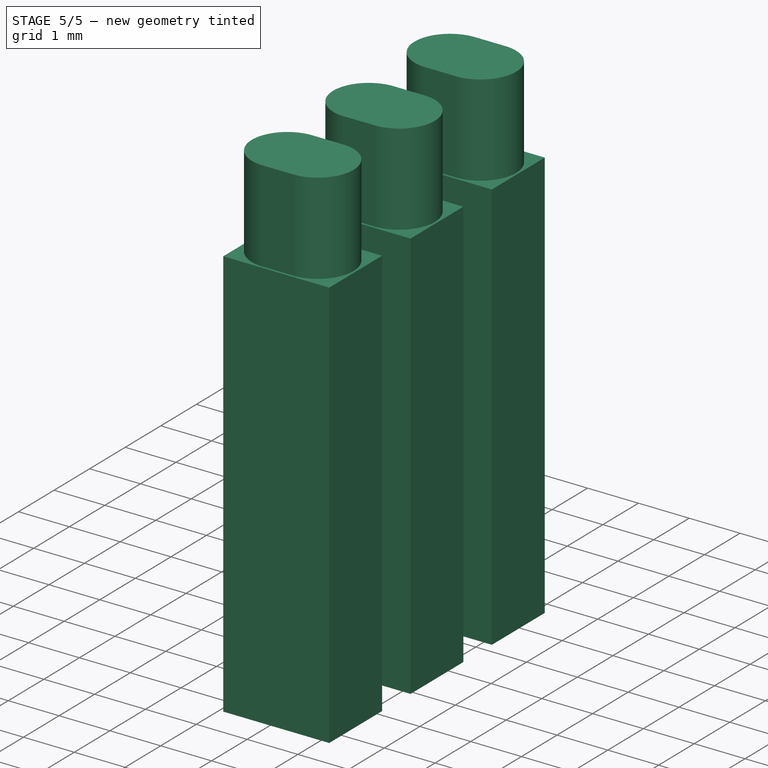
[diagram: stage 5 of 5 — iso view after this stage's code; geometry added in this stage tinted green]
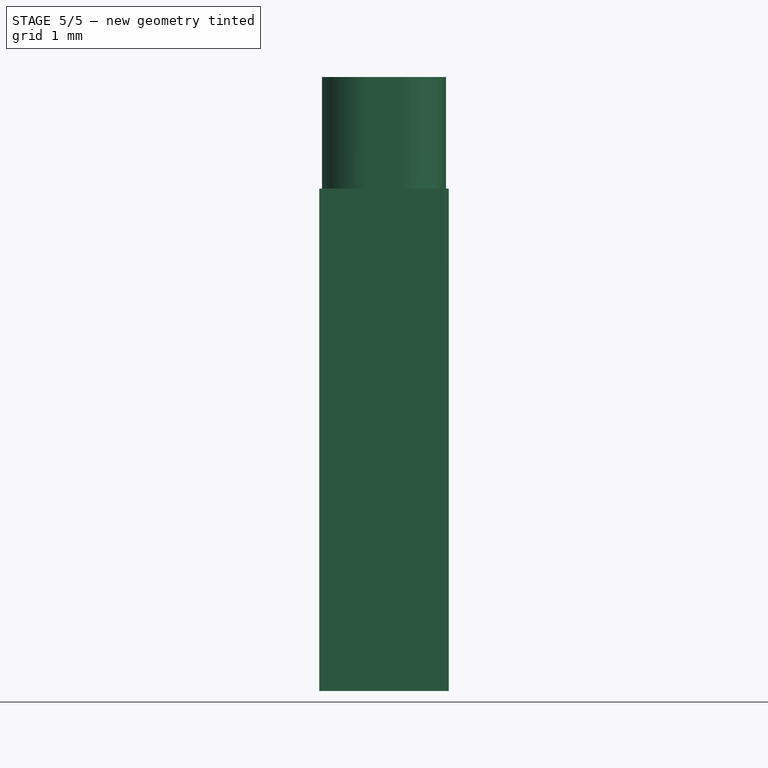
[diagram: stage 5 of 5 — front view after this stage's code; geometry added in this stage tinted green]
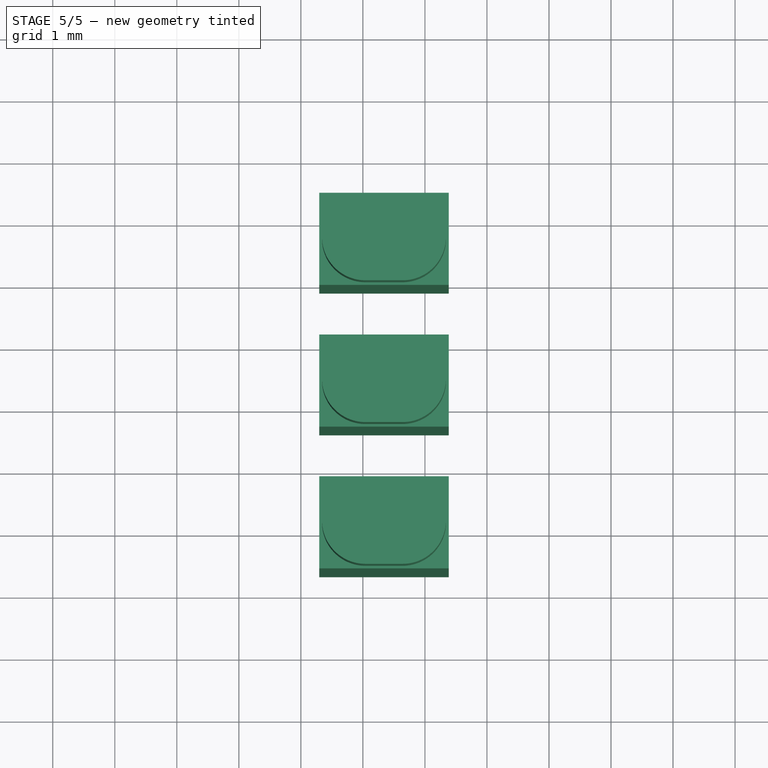
[diagram: stage 5 of 5 — top view after this stage's code; geometry added in this stage tinted green]
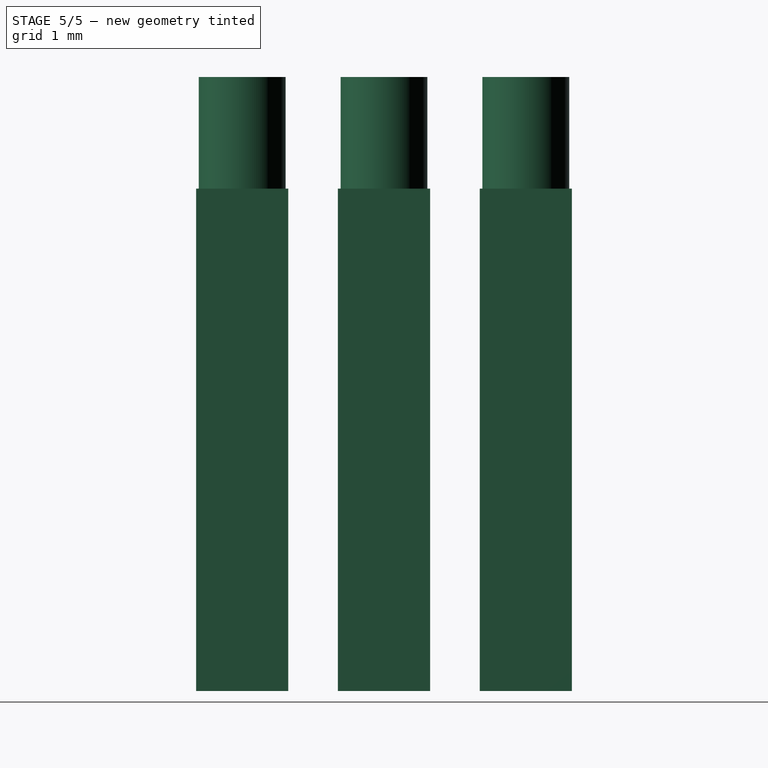
[diagram: stage 5 of 5 — right view after this stage's code; geometry added in this stage tinted green]
FEATURE [Sketcher::SketchObject] Sketch026  label="TopLedHolesFootprint"
  ArcFitTolerance = 1e-06
  AttachmentSupport = -> [Pocket013]
  ExternalTypes = [0]
  FullyConstrained = true
  MakeInternals = false
  MapMode = 5
  Placement = pos=(0,0,0) rot=(1,0,0;3.14159rad)
  _ExternalGeoVersion = 1
  expr: .Constraints.FirstLedOffset = 9.078
  expr: .Constraints.LedDistance = 2.286 mm
  sketch-geometry (18):
    g0: LineSegment [constr] StartX=-13.34 StartY=0 StartZ=0 EndX=-13.34 EndY=-9.078 EndZ=0
    g1: LineSegment [constr] StartX=-13.34 StartY=-9.078 StartZ=0 EndX=-13.34 EndY=-11.364 EndZ=0
    g2: LineSegment [constr] StartX=-13.34 StartY=-11.364 StartZ=0 EndX=-13.34 EndY=-13.65 EndZ=0
    g3: ArcOfCircle CenterX=-13.64 CenterY=-9.078 CenterZ=0 NormalX=0 NormalY=0 NormalZ=1 AngleXU=0 Radius=0.9 StartAngle=1.5708 EndAngle=4.71239
    g4: ArcOfCircle CenterX=-13.04 CenterY=-9.078 CenterZ=0 NormalX=0 NormalY=0 NormalZ=1 AngleXU=0 Radius=0.9 StartAngle=4.71239 EndAngle=7.85398
    g5: LineSegment StartX=-13.64 StartY=-8.178 StartZ=0 EndX=-13.04 EndY=-8.178 EndZ=0
    g6: LineSegment StartX=-13.64 StartY=-9.978 StartZ=0 EndX=-13.04 EndY=-9.978 EndZ=0
    g7: ArcOfCircle CenterX=-13.64 CenterY=-11.364 CenterZ=0 NormalX=0 NormalY=0 NormalZ=1 AngleXU=0 Radius=0.9 StartAngle=1.5708 EndAngle=4.71239
    g8: ArcOfCircle CenterX=-13.04 CenterY=-11.364 CenterZ=0 NormalX=0 NormalY=0 NormalZ=1 AngleXU=0 Radius=0.9 StartAngle=4.71239 EndAngle=7.85398
    g9: LineSegment StartX=-13.64 StartY=-10.464 StartZ=0 EndX=-13.04 EndY=-10.464 EndZ=0
    g10: LineSegment StartX=-13.64 StartY=-12.264 StartZ=0 EndX=-13.04 EndY=-12.264 EndZ=0
    g11: ArcOfCircle CenterX=-13.64 CenterY=-13.65 CenterZ=0 NormalX=0 NormalY=0 NormalZ=1 AngleXU=0 Radius=0.9 StartAngle=1.5708 EndAngle=4.71239
    g12: ArcOfCircle CenterX=-13.04 CenterY=-13.65 CenterZ=0 NormalX=0 NormalY=0 NormalZ=1 AngleXU=0 Radius=0.9 StartAngle=4.71239 EndAngle=7.85398
    g13: LineSegment StartX=-13.64 StartY=-12.75 StartZ=0 EndX=-13.04 EndY=-12.75 EndZ=0
    g14: LineSegment StartX=-13.64 StartY=-14.55 StartZ=0 EndX=-13.04 EndY=-14.55 EndZ=0
    g15: LineSegment [constr] StartX=-13.04 StartY=-8.178 StartZ=0 EndX=-13.04 EndY=-9.978 EndZ=0
    g16: LineSegment [constr] StartX=-13.04 StartY=-10.464 StartZ=0 EndX=-13.04 EndY=-12.264 EndZ=0
    g17: LineSegment [constr] StartX=-13.04 StartY=-12.75 StartZ=0 EndX=-13.04 EndY=-14.55 EndZ=0
  constraints (43):
    c: PointOnObject(g0,g-1)
    c: Vertical(g0)
    c: DistanceX(g0,g-1) = 13.34  'LedsOffset'
    c: DistanceY(g0,g0) = 9.078  'FirstLedOffset'
    c: Coincident(g1,g0)
    c: Vertical(g1)
    c: DistanceY(g1,g1) = 2.286  'LedDistance'
    c: Coincident(g2,g1)
    c: Vertical(g2)
    c: Equal(g1,g2)
    c: Tangent(g3,g5) = 1.5708
    c: Tangent(g3,g6) = -1.5708
    c: Tangent(g4,g5) = 1.5708
    c: Tangent(g4,g6) = -1.5708
    c: Equal(g3,g4)
    c: Horizontal(g5)
    c: Symmetric(g3,g4,g0)
    c: DistanceY(g4,g4) = 1.8  'HoleDiameter'
    c: DistanceX(g3,g4) = 0.6  'SlotWidth'
    c: Tangent(g7,g9) = 1.5708
    c: Tangent(g7,g10) = -1.5708
    c: Tangent(g8,g9) = 1.5708
    c: Tangent(g8,g10) = -1.5708
    c: Equal(g7,g8)
    c: Horizontal(g9)
    c: Tangent(g11,g13) = 1.5708
    c: Tangent(g11,g14) = -1.5708
    c: Tangent(g12,g13) = 1.5708
    c: Tangent(g12,g14) = -1.5708
    c: Equal(g11,g12)
    c: Horizontal(g13)
    c: Symmetric(g7,g8,g1)
    c: Symmetric(g11,g12,g2)
    c: Coincident(g15,g4)
    c: Coincident(g15,g4)
    c: Coincident(g16,g8)
    c: Coincident(g16,g8)
    c: Coincident(g17,g12)
    c: Coincident(g17,g12)
    c: Equal(g15,g16)
    c: Equal(g16,g17)
    c: Equal(g5,g9)
    c: Equal(g9,g13)
FEATURE [PartDesign::Pocket] Pocket015  label="TopLedHoles"
  BaseFeature = -> Pocket013
  Direction = (0,0,1)
  Length = 5
  Length2 = 5
  Profile = -> Sketch026
  ReferenceAxis = -> Sketch026 [N_Axis]
  Refine = true
  SideType = 0
  Suppressed = false
  Type = 2
  Type2 = 0
FEATURE [PartDesign::Body] Body  label="Bottom"
  AllowCompound = false
  Group = -> [Sketch,Pad,Pocket011,Hole,Sketch019,Sketch001,Pocket,Sketch002,Pad001,Hole001,Sketch003,Pocket001,Sketch004,Pocket002,Sketch005,Pad002,Sketch006,Pad003,Sketch007,Pocket003,Sketch008,Pocket004,Sketch011,Sketch020,Chamfer001,Chamfer002]
  Origin = -> Origin001
  Tip = -> Chamfer002
FEATURE [Sketcher::SketchObject] Sketch027  label="LedLightGuideWallsFootprint"
  ArcFitTolerance = 1e-06
  AttachmentSupport = -> [Pocket015]
  ExternalGeometry = -> [Pocket015]
  ExternalTypes = [0,0,0,0,0,0,0,0,0,0,0,0]
  FullyConstrained = true
  MakeInternals = false
  MapMode = 5
  Placement = pos=(0,0,1.6) rot=(0,0,1;0rad)
  _ExternalGeoVersion = 1
  expr: .Constraints.InnerWall = <<Params>>.InnerWall
  sketch-geometry (26):
    g0: LineSegment StartX=-14.583 StartY=8.135 StartZ=0 EndX=-12.097 EndY=8.135 EndZ=0
    g1: LineSegment StartX=-12.097 StartY=14.593 StartZ=0 EndX=-14.583 EndY=14.593 EndZ=0
    g2: LineSegment [constr] StartX=-14.54 StartY=13.65 StartZ=0 EndX=-12.14 EndY=13.65 EndZ=0
    g3: LineSegment StartX=-15.583 StartY=15.593 StartZ=0 EndX=-15.583 EndY=7.135 EndZ=0
    g4: LineSegment StartX=-15.583 StartY=7.135 StartZ=0 EndX=-11.097 EndY=7.135 EndZ=0
    g5: LineSegment StartX=-11.097 StartY=7.135 StartZ=0 EndX=-11.097 EndY=15.593 EndZ=0
    g6: LineSegment StartX=-11.097 StartY=15.593 StartZ=0 EndX=-15.583 EndY=15.593 EndZ=0
    g7: LineSegment [constr] StartX=-12.097 StartY=14.593 StartZ=0 EndX=-12.097 EndY=15.593 EndZ=0
    g8: LineSegment [constr] StartX=-12.097 StartY=14.593 StartZ=0 EndX=-11.097 EndY=14.593 EndZ=0
    g9: LineSegment [constr] StartX=-12.097 StartY=8.135 StartZ=0 EndX=-12.097 EndY=7.135 EndZ=0
    g10: LineSegment StartX=-14.583 StartY=12.307 StartZ=0 EndX=-12.097 EndY=12.307 EndZ=0
    g11: LineSegment StartX=-12.097 StartY=12.707 StartZ=0 EndX=-14.583 EndY=12.707 EndZ=0
    g12: LineSegment StartX=-14.583 StartY=10.021 StartZ=0 EndX=-12.097 EndY=10.021 EndZ=0
    g13: LineSegment StartX=-12.097 StartY=10.421 StartZ=0 EndX=-14.583 EndY=10.421 EndZ=0
    g14: LineSegment StartX=-14.583 StartY=14.593 StartZ=0 EndX=-14.583 EndY=12.707 EndZ=0
    g15: LineSegment StartX=-12.097 StartY=14.593 StartZ=0 EndX=-12.097 EndY=12.707 EndZ=0
    g16: LineSegment StartX=-14.583 StartY=12.307 StartZ=0 EndX=-14.583 EndY=10.421 EndZ=0
    g17: LineSegment StartX=-12.097 StartY=12.307 StartZ=0 EndX=-12.097 EndY=10.421 EndZ=0
    g18: LineSegment StartX=-14.583 StartY=10.021 StartZ=0 EndX=-14.583 EndY=8.135 EndZ=0
    g19: LineSegment StartX=-12.097 StartY=10.021 StartZ=0 EndX=-12.097 EndY=8.135 EndZ=0
    g20: LineSegment [constr] StartX=-13.34 StartY=12.75 StartZ=0 EndX=-13.34 EndY=12.707 EndZ=0
    g21: LineSegment [constr] StartX=-14.54 StartY=13.65 StartZ=0 EndX=-14.583 EndY=13.65 EndZ=0
    g22: LineSegment [constr] StartX=-14.583 StartY=14.593 StartZ=0 EndX=-15.583 EndY=14.593 EndZ=0
    g23: LineSegment [constr] StartX=-14.583 StartY=12.707 StartZ=0 EndX=-14.583 EndY=12.307 EndZ=0
    g24: LineSegment [constr] StartX=-14.583 StartY=10.421 StartZ=0 EndX=-14.583 EndY=10.021 EndZ=0
    g25: LineSegment [constr] StartX=-13.34 StartY=8.178 StartZ=0 EndX=-13.34 EndY=8.135 EndZ=0
  constraints (75):
    c: Horizontal(g0)
    c: Horizontal(g1)
    c: Coincident(g3,g4)
    c: Coincident(g4,g5)
    c: Coincident(g5,g6)
    c: Coincident(g6,g3)
    c: Vertical(g3)
    c: Vertical(g5)
    c: Horizontal(g4)
    c: Horizontal(g6)
    c: Coincident(g7,g1)
    c: PointOnObject(g7,g6)
    c: Vertical(g7)
    c: Coincident(g8,g1)
    c: PointOnObject(g8,g5)
    c: Horizontal(g8)
    c: Coincident(g9,g0)
    c: PointOnObject(g9,g4)
    c: Vertical(g9)
    c: Equal(g7,g8)
    c: Equal(g8,g9)
    c: Horizontal(g10)
    c: Horizontal(g11)
    c: Horizontal(g12)
    c: Horizontal(g13)
    c: Coincident(g14,g11)
    c: Vertical(g14)
    c: Coincident(g15,g1)
    c: Coincident(g15,g11)
    c: Vertical(g15)
    c: Coincident(g16,g10)
    c: Coincident(g16,g13)
    c: Vertical(g16)
    c: Coincident(g17,g10)
    c: Coincident(g17,g13)
    c: Vertical(g17)
    c: Coincident(g18,g12)
    c: Coincident(g18,g0)
    c: Vertical(g18)
    c: Coincident(g19,g12)
    c: Coincident(g19,g0)
    c: Vertical(g19)
    c: Symmetric(g11,g11,g20)
    c: Coincident(g21,g2)
    c: Symmetric(g14,g14,g21)
    c: Horizontal(g21)
    c: Coincident(g1,g14)
    c: Equal(g21,g20)
    c: Coincident(g22,g1)
    c: PointOnObject(g22,g3)
    c: Horizontal(g22)
    c: DistanceX(g22,g22) = 1  'InnerWall'
    c: Equal(g22,g7)
    c: Coincident(g23,g11)
    c: Coincident(g23,g10)
    c: Vertical(g23)
    c: Coincident(g24,g13)
    c: Coincident(g24,g12)
    c: Vertical(g24)
    c: Equal(g23,g24)
    c: DistanceY(g23,g23) = 0.4  'ThinWall'
    c: Symmetric(g0,g0,g25)
    c: Equal(g25,g20)
    c: PointOnObject(g-4,g2)
    c: PointOnObject(g2,g-6)
    c: Horizontal(g2)
    c: PointOnObject(g2,g-4)
    c: Vertical(g25)
    c: Equal(g1,g10)
    c: Equal(g10,g12)
    c: Equal(g14,g16)
    c: Equal(g16,g18)
    c: PointOnObject(g25,g-13)
    c: Symmetric(g-5,g-6,g20)
    c: Vertical(g20)
FEATURE [PartDesign::Pad] Pad007  label="LedLightGuideWalls"
  BaseFeature = -> Pocket015
  Direction = (0,0,1)
  Length = 8.4
  Length2 = 10
  Profile = -> Sketch027
  ReferenceAxis = -> Sketch027 [N_Axis]
  Refine = true
  SideType = 0
  Suppressed = false
  Type = 0
  Type2 = 0
  expr: Length = <<Params>>.TopHeight - <<Params>>.MainWall + 2
FEATURE [App::Point] Origin007
  Role = Origin
FEATURE [PartDesign::SubShapeBinder] Binder001  label="BinderTop"
  BindCopyOnChange = 0
  BindMode = 0
  ClaimChildren = false
  Context = -> Body002 [Binder001.]
  Fuse = false
  MakeFace = true
  OffsetFill = false
  OffsetIntersection = false
  OffsetJoinType = 0
  OffsetOpenResult = false
  PartialLoad = false
  Refine = true
  Relative = true
  Support = -> [Body001]
  _Version = 2
FEATURE [Sketcher::SketchObject] Sketch028  label="LightGuideShaftFootprint"
  ArcFitTolerance = 1e-06
  AttachmentSupport = -> [Binder001]
  ExternalGeometry = -> [Binder001]
  ExternalTypes = [0,0,0,0,0,0,0,0,0,0,0,0]
  FullyConstrained = true
  MakeInternals = false
  MapMode = 5
  Placement = pos=(-1.9e-15,0,15.4) rot=(1,0,0;3.14159rad)
  _ExternalGeoVersion = 1
  expr: .Constraints.Spacing = 0.2
  sketch-geometry (24):
    g0: LineSegment StartX=12.297 StartY=-8.335 StartZ=0 EndX=12.297 EndY=-9.821 EndZ=0
    g1: LineSegment StartX=12.297 StartY=-9.821 StartZ=0 EndX=14.383 EndY=-9.821 EndZ=0
    g2: LineSegment StartX=14.383 StartY=-9.821 StartZ=0 EndX=14.383 EndY=-8.335 EndZ=0
    g3: LineSegment StartX=14.383 StartY=-8.335 StartZ=0 EndX=12.297 EndY=-8.335 EndZ=0
    g4: LineSegment StartX=12.297 StartY=-10.621 StartZ=0 EndX=12.297 EndY=-12.107 EndZ=0
    g5: LineSegment StartX=12.297 StartY=-12.107 StartZ=0 EndX=14.383 EndY=-12.107 EndZ=0
    g6: LineSegment StartX=14.383 StartY=-12.107 StartZ=0 EndX=14.383 EndY=-10.621 EndZ=0
    g7: LineSegment StartX=14.383 StartY=-10.621 StartZ=0 EndX=12.297 EndY=-10.621 EndZ=0
    g8: LineSegment StartX=12.297 StartY=-12.907 StartZ=0 EndX=12.297 EndY=-14.393 EndZ=0
    g9: LineSegment StartX=12.297 StartY=-14.393 StartZ=0 EndX=14.383 EndY=-14.393 EndZ=0
    g10: LineSegment StartX=14.383 StartY=-14.393 StartZ=0 EndX=14.383 EndY=-12.907 EndZ=0
    g11: LineSegment StartX=14.383 StartY=-12.907 StartZ=0 EndX=12.297 EndY=-12.907 EndZ=0
    g12: LineSegment [constr] StartX=12.297 StartY=-12.907 StartZ=0 EndX=12.097 EndY=-12.907 EndZ=0
    g13: LineSegment [constr] StartX=14.383 StartY=-14.393 StartZ=0 EndX=14.383 EndY=-14.593 EndZ=0
    g14: LineSegment [constr] StartX=14.383 StartY=-14.393 StartZ=0 EndX=14.583 EndY=-14.393 EndZ=0
    g15: LineSegment [constr] StartX=12.297 StartY=-10.621 StartZ=0 EndX=12.297 EndY=-10.421 EndZ=0
    g16: LineSegment [constr] StartX=12.297 StartY=-10.621 StartZ=0 EndX=12.097 EndY=-10.621 EndZ=0
    g17: LineSegment [constr] StartX=14.383 StartY=-12.107 StartZ=0 EndX=14.383 EndY=-12.307 EndZ=0
    g18: LineSegment [constr] StartX=14.383 StartY=-12.107 StartZ=0 EndX=14.583 EndY=-12.107 EndZ=0
    g19: LineSegment [constr] StartX=12.297 StartY=-8.335 StartZ=0 EndX=12.297 EndY=-8.135 EndZ=0
    g20: LineSegment [constr] StartX=12.297 StartY=-8.335 StartZ=0 EndX=12.097 EndY=-8.335 EndZ=0
    g21: LineSegment [constr] StartX=14.383 StartY=-9.821 StartZ=0 EndX=14.583 EndY=-9.821 EndZ=0
    g22: LineSegment [constr] StartX=14.383 StartY=-9.821 StartZ=0 EndX=14.383 EndY=-10.021 EndZ=0
    g23: LineSegment [constr] StartX=12.297 StartY=-12.907 StartZ=0 EndX=12.297 EndY=-12.707 EndZ=0
  constraints (72):
    c: Coincident(g0,g1)
    c: Coincident(g1,g2)
    c: Coincident(g2,g3)
    c: Coincident(g3,g0)
    c: Vertical(g0)
    c: Vertical(g2)
    c: Horizontal(g1)
    c: Horizontal(g3)
    c: Coincident(g4,g5)
    c: Coincident(g5,g6)
    c: Coincident(g6,g7)
    c: Coincident(g7,g4)
    c: Vertical(g4)
    c: Vertical(g6)
    c: Horizontal(g5)
    c: Horizontal(g7)
    c: Coincident(g8,g9)
    c: Coincident(g9,g10)
    c: Coincident(g10,g11)
    c: Coincident(g11,g8)
    c: Vertical(g8)
    c: Vertical(g10)
    c: Horizontal(g9)
    c: Horizontal(g11)
    c: Coincident(g12,g8)
    c: PointOnObject(g12,g-13)
    c: Horizontal(g12)
    c: Coincident(g13,g9)
    c: PointOnObject(g13,g-14)
    c: Vertical(g13)
    c: Coincident(g14,g9)
    c: PointOnObject(g14,g-11)
    c: Horizontal(g14)
    c: Coincident(g15,g4)
    c: PointOnObject(g15,g-8)
    c: Vertical(g15)
    c: Coincident(g16,g4)
    c: PointOnObject(g16,g-7)
    c: Horizontal(g16)
    c: Coincident(g17,g5)
    c: PointOnObject(g17,g-10)
    c: Vertical(g17)
    c: Coincident(g18,g5)
    c: PointOnObject(g18,g-9)
    c: Horizontal(g18)
    c: Coincident(g19,g0)
    c: PointOnObject(g19,g-3)
    c: Vertical(g19)
    c: Coincident(g20,g0)
    c: PointOnObject(g20,g-6)
    c: Horizontal(g20)
    c: Coincident(g21,g1)
    c: PointOnObject(g21,g-4)
    c: Horizontal(g21)
    c: Coincident(g22,g1)
    c: PointOnObject(g22,g-5)
    c: Vertical(g22)
    c: Coincident(g23,g8)
    c: PointOnObject(g23,g-12)
    c: Vertical(g23)
    c: Equal(g19,g20)
    c: Equal(g20,g21)
    c: Equal(g21,g22)
    c: Equal(g15,g16)
    c: Equal(g16,g18)
    c: Equal(g18,g17)
    c: Equal(g23,g12)
    c: Equal(g12,g14)
    c: Equal(g14,g13)
    c: Equal(g19,g15)
    c: Equal(g15,g23)
    c: DistanceX(g20,g20) = 0.2  'Spacing'
FEATURE [PartDesign::Pad] Pad008  label="LightGuideShaft"
  Direction = (0,0,-1)
  Length = 10
  Length2 = 10
  Offset = 0.3
  Profile = -> Sketch028
  ReferenceAxis = -> Sketch028 [N_Axis]
  Refine = true
  SideType = 0
  Suppressed = false
  Type = 3
  Type2 = 0
  UpToFace = -> Binder001 [Face151]
  UpToShape = -> [Binder001]
FEATURE [Sketcher::SketchObject] Sketch029  label="LightGuideHeadFootprint"
  ArcFitTolerance = 1e-06
  AttachmentSupport = -> [Binder001]
  ExternalGeometry = -> [Binder001]
  ExternalTypes = [0,0,0,0,0,0,0,0,0,0,0,0]
  FullyConstrained = true
  MakeInternals = false
  MapMode = 5
  Placement = pos=(-1.9e-15,0,15.4) rot=(1,0,0;3.14159rad)
  _ExternalGeoVersion = 1
  expr: .Constraints.Spacing = <<LightGuideShaftFootprint>>.Constraints.Spacing
  sketch-geometry (15):
    g0: ArcOfCircle CenterX=13.04 CenterY=-9.078 CenterZ=0 NormalX=0 NormalY=0 NormalZ=1 AngleXU=0 Radius=0.7 StartAngle=1.5708 EndAngle=4.71239
    g1: ArcOfCircle CenterX=13.64 CenterY=-9.078 CenterZ=0 NormalX=0 NormalY=0 NormalZ=1 AngleXU=0 Radius=0.7 StartAngle=4.71239 EndAngle=7.85398
    g2: LineSegment StartX=13.04 StartY=-8.378 StartZ=0 EndX=13.64 EndY=-8.378 EndZ=0
    g3: LineSegment StartX=13.04 StartY=-9.778 StartZ=0 EndX=13.64 EndY=-9.778 EndZ=0
    g4: ArcOfCircle CenterX=13.04 CenterY=-11.364 CenterZ=0 NormalX=0 NormalY=0 NormalZ=1 AngleXU=0 Radius=0.7 StartAngle=1.5708 EndAngle=4.71239
    g5: ArcOfCircle CenterX=13.64 CenterY=-11.364 CenterZ=0 NormalX=0 NormalY=0 NormalZ=1 AngleXU=0 Radius=0.7 StartAngle=4.71239 EndAngle=7.85398
    g6: LineSegment StartX=13.04 StartY=-10.664 StartZ=0 EndX=13.64 EndY=-10.664 EndZ=0
    g7: LineSegment StartX=13.04 StartY=-12.064 StartZ=0 EndX=13.64 EndY=-12.064 EndZ=0
    g8: ArcOfCircle CenterX=13.04 CenterY=-13.65 CenterZ=0 NormalX=0 NormalY=0 NormalZ=1 AngleXU=0 Radius=0.7 StartAngle=1.5708 EndAngle=4.71239
    g9: ArcOfCircle CenterX=13.64 CenterY=-13.65 CenterZ=0 NormalX=0 NormalY=0 NormalZ=1 AngleXU=0 Radius=0.7 StartAngle=4.71239 EndAngle=7.85398
    g10: LineSegment StartX=13.04 StartY=-12.95 StartZ=0 EndX=13.64 EndY=-12.95 EndZ=0
    g11: LineSegment StartX=13.04 StartY=-14.35 StartZ=0 EndX=13.64 EndY=-14.35 EndZ=0
    g12: LineSegment [constr] StartX=13.04 StartY=-12.95 StartZ=0 EndX=13.04 EndY=-12.75 EndZ=0
    g13: LineSegment [constr] StartX=13.04 StartY=-10.664 StartZ=0 EndX=13.04 EndY=-10.464 EndZ=0
    g14: LineSegment [constr] StartX=13.04 StartY=-8.378 StartZ=0 EndX=13.04 EndY=-8.178 EndZ=0
  constraints (30):
    c: Tangent(g0,g2) = 1.5708
    c: Tangent(g0,g3) = -1.5708
    c: Tangent(g1,g2) = 1.5708
    c: Tangent(g1,g3) = -1.5708
    c: Equal(g0,g1)
    c: Tangent(g4,g6) = 1.5708
    c: Tangent(g4,g7) = -1.5708
    c: Tangent(g5,g6) = 1.5708
    c: Tangent(g5,g7) = -1.5708
    c: Equal(g4,g5)
    c: Tangent(g8,g10) = 1.5708
    c: Tangent(g8,g11) = -1.5708
    c: Tangent(g9,g10) = 1.5708
    c: Tangent(g9,g11) = -1.5708
    c: Equal(g8,g9)
    c: Coincident(g0,g-5)
    c: Coincident(g1,g-3)
    c: Coincident(g4,g-9)
    c: Coincident(g5,g-7)
    c: Coincident(g8,g-14)
    c: Coincident(g9,g-12)
    c: Coincident(g12,g8)
    c: Coincident(g12,g-14)
    c: Coincident(g13,g4)
    c: Coincident(g13,g-9)
    c: Coincident(g14,g0)
    c: Coincident(g14,g-5)
    c: Equal(g13,g14)
    c: Equal(g14,g12)
    c: DistanceY(g14,g14) = 0.2  'Spacing'
FEATURE [PartDesign::Pad] Pad009  label="LightGuideHead"
  BaseFeature = -> Pad008
  Direction = (0,0,-1)
  Length = 10
  Length2 = 10
  Offset = 0.2
  Profile = -> Sketch029
  ReferenceAxis = -> Sketch029 [N_Axis]
  Refine = true
  SideType = 0
  Suppressed = false
  Type = 3
  Type2 = 0
  UpToFace = -> Binder001 [Face5]
FEATURE [PartDesign::Body] Body002  label="LightGuide"
  AllowCompound = true
  Group = -> [Binder001,Sketch028,Pad008,Sketch029,Pad009]
  Origin = -> Origin006
  Tip = -> Pad009
FEATURE [Sketcher::SketchObject] Sketch030  label="LedSeparatorsFootprint"
  ArcFitTolerance = 1e-06
  AttachmentSupport = -> [Pad007]
  ExternalGeometry = -> [Pad007]
  ExternalTypes = [0,0,0,0,0,0]
  FullyConstrained = true
  MakeInternals = false
  MapMode = 5
  Placement = pos=(0,0,10) rot=(0,0,1;0rad)
  _ExternalGeoVersion = 1
  sketch-geometry (12):
    g0: LineSegment StartX=-12.097 StartY=12.707 StartZ=0 EndX=-11.097 EndY=12.707 EndZ=0
    g1: LineSegment StartX=-12.097 StartY=12.307 StartZ=0 EndX=-11.097 EndY=12.307 EndZ=0
    g2: LineSegment StartX=-11.097 StartY=12.707 StartZ=0 EndX=-11.097 EndY=12.307 EndZ=0
    g3: LineSegment StartX=-14.583 StartY=12.707 StartZ=0 EndX=-15.583 EndY=12.707 EndZ=0
    g4: LineSegment StartX=-14.583 StartY=12.307 StartZ=0 EndX=-15.583 EndY=12.307 EndZ=0
    g5: LineSegment StartX=-15.583 StartY=12.707 StartZ=0 EndX=-15.583 EndY=12.307 EndZ=0
    g6: LineSegment StartX=-12.097 StartY=10.421 StartZ=0 EndX=-11.097 EndY=10.421 EndZ=0
    g7: LineSegment StartX=-12.097 StartY=10.021 StartZ=0 EndX=-11.097 EndY=10.021 EndZ=0
    g8: LineSegment StartX=-11.097 StartY=10.421 StartZ=0 EndX=-11.097 EndY=10.021 EndZ=0
    g9: LineSegment StartX=-14.583 StartY=10.421 StartZ=0 EndX=-15.583 EndY=10.421 EndZ=0
    g10: LineSegment StartX=-14.583 StartY=10.021 StartZ=0 EndX=-15.583 EndY=10.021 EndZ=0
    g11: LineSegment StartX=-15.583 StartY=10.021 StartZ=0 EndX=-15.583 EndY=10.421 EndZ=0
  constraints (32):
    c: Coincident(g0,g-3)
    c: PointOnObject(g0,g-7)
    c: Horizontal(g0)
    c: Coincident(g1,g-4)
    c: PointOnObject(g1,g-7)
    c: Horizontal(g1)
    c: Coincident(g2,g0)
    c: Coincident(g2,g1)
    c: Coincident(g3,g-3)
    c: PointOnObject(g3,g-8)
    c: Horizontal(g3)
    c: Coincident(g4,g-4)
    c: PointOnObject(g4,g-8)
    c: Coincident(g5,g3)
    c: Coincident(g5,g4)
    c: Horizontal(g4)
    c: Coincident(g6,g-5)
    c: PointOnObject(g6,g-7)
    c: Horizontal(g6)
    c: Coincident(g7,g-6)
    c: PointOnObject(g7,g-7)
    c: Horizontal(g7)
    c: Coincident(g8,g6)
    c: Coincident(g8,g7)
    c: Coincident(g9,g-5)
    c: PointOnObject(g9,g-8)
    c: Horizontal(g9)
    c: Coincident(g10,g-6)
    c: PointOnObject(g10,g-8)
    c: Horizontal(g10)
    c: Coincident(g11,g10)
    c: Coincident(g11,g9)
FEATURE [PartDesign::Pad] Pad010  label="LedSeparators"
  BaseFeature = -> Pad007
  Direction = (0,0,1)
  Length = 1
  Length2 = 10
  Profile = -> Sketch030
  ReferenceAxis = -> Sketch030 [N_Axis]
  Refine = true
  SideType = 0
  Suppressed = false
  Type = 0
  Type2 = 0
FEATURE [PartDesign::Chamfer] Chamfer  label="TopChamfer"
  Angle = 30
  Base = -> Pad010 [Edge152,Edge151,Edge147,Edge83,Edge89,Edge92,Edge135,Edge138,Edge183,Edge187]
  BaseFeature = -> Pad010
  ChamferType = 2
  FlipDirection = false
  Refine = true
  Size = 0.8
  Size2 = 1
  SupportTransform = false
  Suppressed = false
  UseAllEdges = false
  expr: Size = <<Params>>.MainWall / 2
FEATURE [PartDesign::Body] Body001  label="Top"
  AllowCompound = false
  Group = -> [Sketch012,Binder,Pad004,Sketch013,Pocket006,Sketch014,Pocket007,Pocket014,Sketch015,Pocket008,Sketch016,Pocket009,Pad006,Sketch017,Pad005,Sketch021,Hole002,Sketch022,Pocket012,Sketch023,Pocket013,Sketch024,Sketch025,Sketch026,Pocket015,Pad007,Sketch030,Pad010,Sketch027,Chamfer]
  Origin = -> Origin002
  Placement = pos=(0,0,17) rot=(0,1,0;3.14159rad)
  Tip = -> Chamfer
  expr: .Placement.Base.z = <<Params>>.BottomHeight + <<Params>>.TopHeight
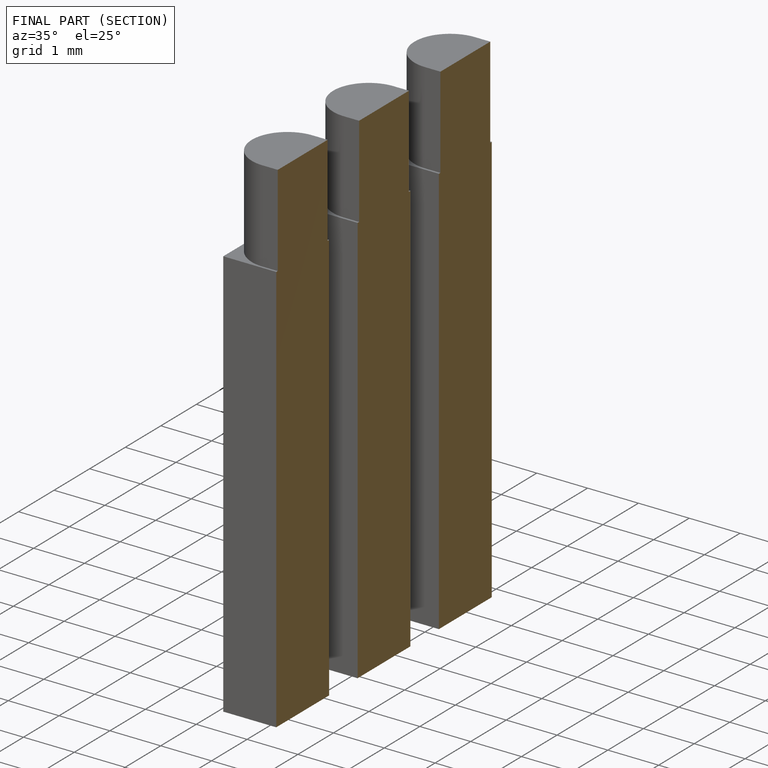
[diagram: finished part — half-section view (interior)]
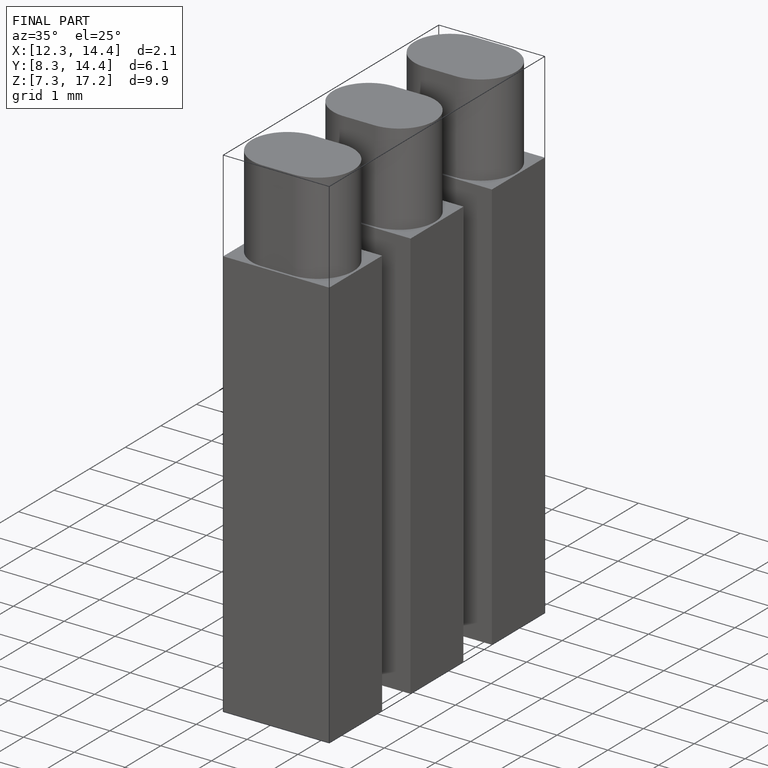
[diagram: finished part — iso view with bounding-box wireframe]
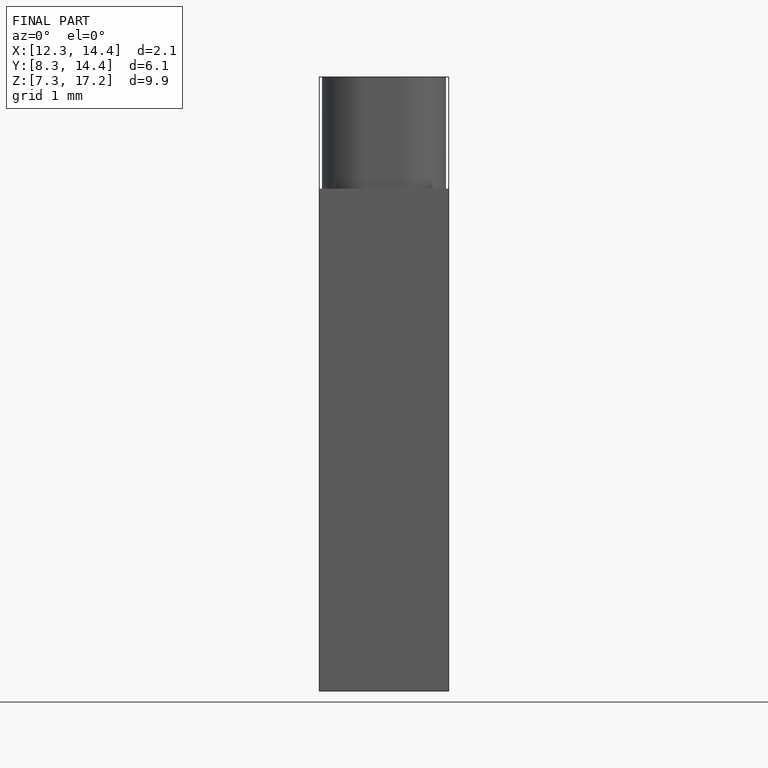
[diagram: finished part — front view with bounding-box wireframe]
